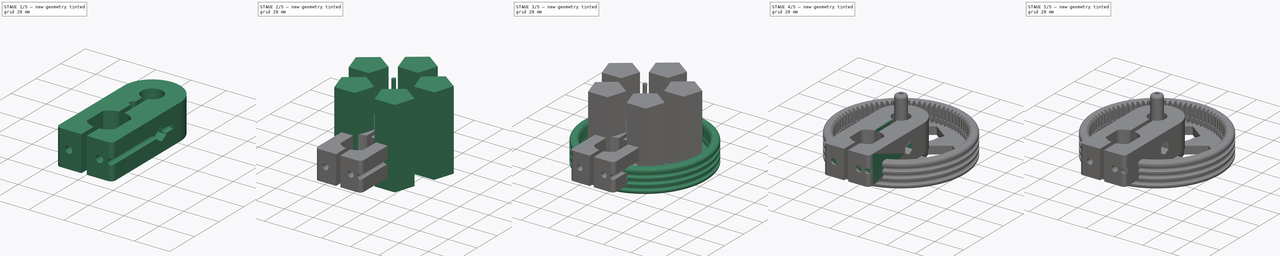
[diagram: build sequence overview — one tinted view per stage of 5, left to right]
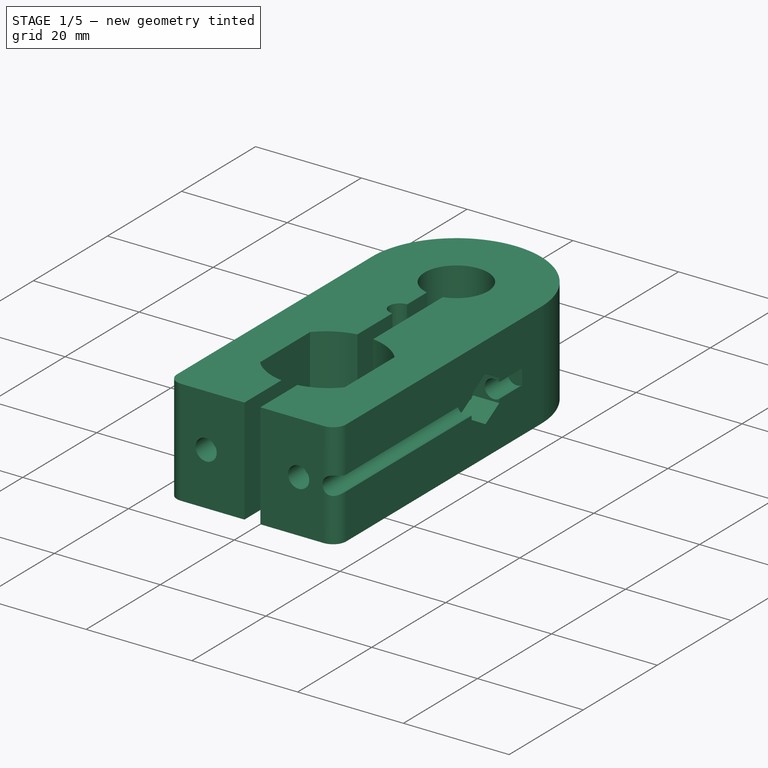
[diagram: stage 1 of 5 — iso view after this stage's code; geometry added in this stage tinted green]
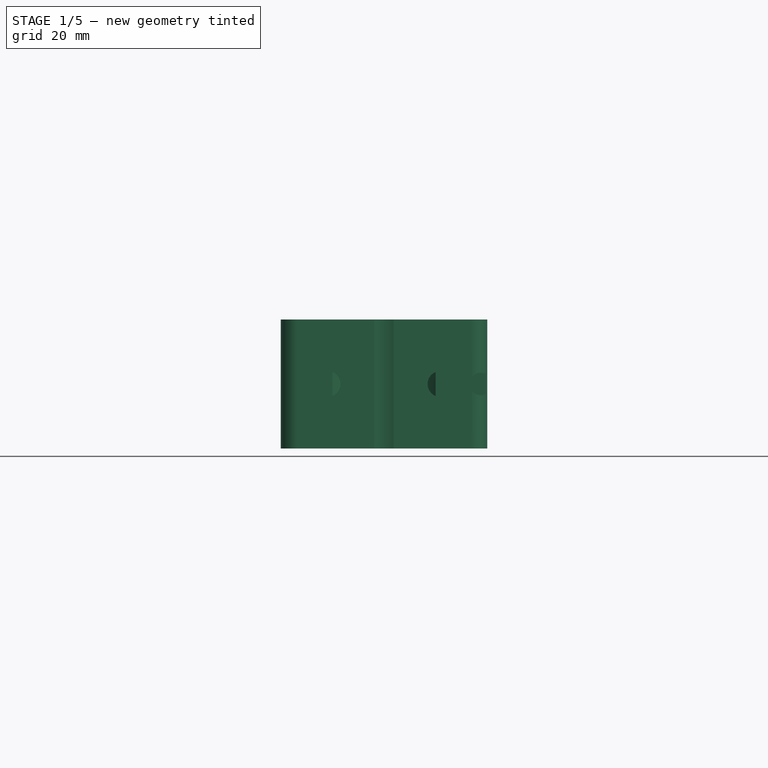
[diagram: stage 1 of 5 — front view after this stage's code; geometry added in this stage tinted green]
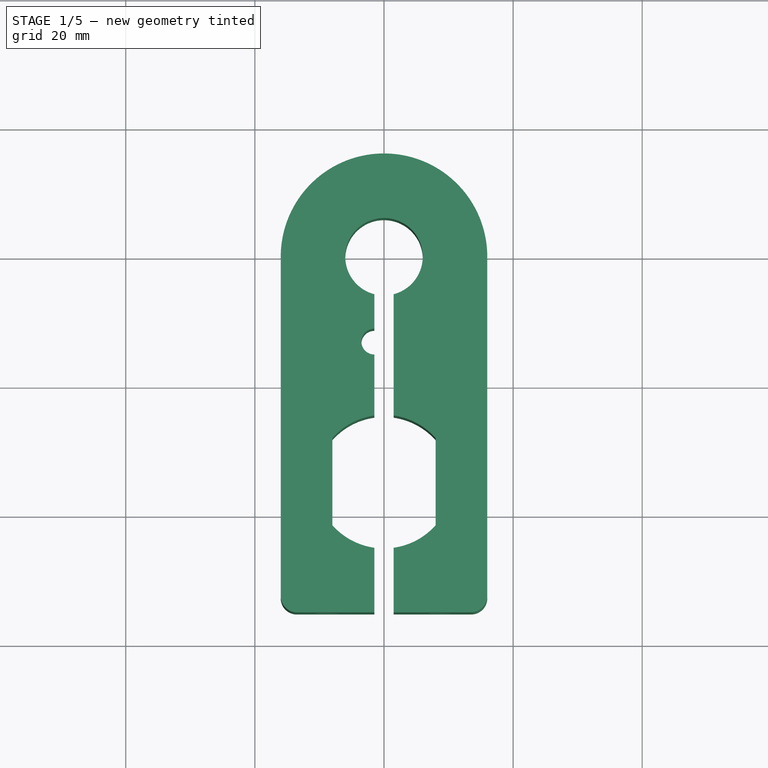
[diagram: stage 1 of 5 — top view after this stage's code; geometry added in this stage tinted green]
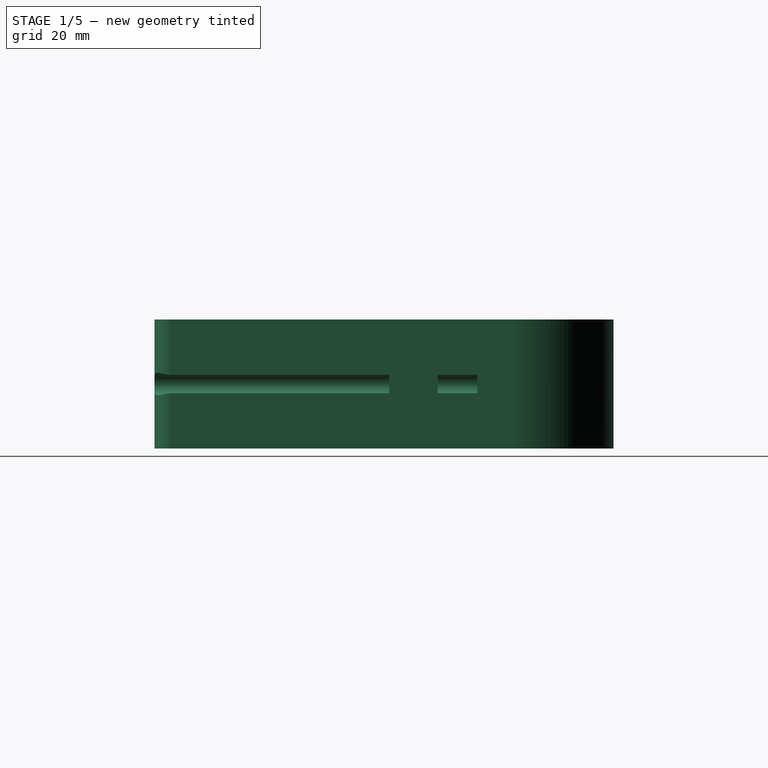
[diagram: stage 1 of 5 — right view after this stage's code; geometry added in this stage tinted green]
FCSTD DOCUMENT  (FreeCAD 0.20R29077 (Git))
Label: GruppoRuotaMotoriPiatti
License: All rights reserved
LicenseURL: http://en.wikipedia.org/wiki/All_rights_reserved
objects: Sketcher::SketchObject×17, PartDesign::Pocket×13, PartDesign::Body×6, App::Part×4, PartDesign::FeatureBase×3, Part::FeaturePython×2, Part::Cut×2, PartDesign::Pad×2, PartDesign::Revolution×1, PartDesign::FeaturePython×1, Part::Extrusion×1, PartDesign::ShapeBinder×1
note: 65 computed .brp shape members not serialized (recipe doc carries the construction recipe); baked Part::Feature solids carry a one-line shape summary decoded from their .brp

FEATURE [PartDesign::Body] Body004  label="Trasmissione 8 denti Lato Motore"
  BaseFeature = -> involutegear002
  Group = -> [BaseFeature001,Sketch010,Pocket007]
  Origin = -> Origin008
  Placement = pos=(0,-2,0) rot=(0,0,1;0.244346rad)
  Tip = -> Pocket007
FEATURE [App::Part] Part  label="Trasmissione"
  Group = -> [Body,Body001,Sketch001,Revolution,Body004]
  Origin = -> Origin
  Placement = pos=(0,-33,5) rot=(0,0,1;0.226893rad)
FEATURE [Sketcher::SketchObject] Sketch011  label="StaffaMotore015"
  FullyConstrained = false
  MapMode = 5
  Support = -> [XY_Plane010]
  sketch-geometry (37):
    g0: LineSegment StartX=-8 StartY=-28.1 StartZ=0 EndX=-8 EndY=-41.6 EndZ=0
    g1: LineSegment StartX=8 StartY=-41.6 StartZ=0 EndX=8 EndY=-28.1 EndZ=0
    g2: LineSegment StartX=-8 StartY=-28.1 StartZ=0 EndX=0 EndY=-28.1 EndZ=0
    g3: LineSegment StartX=0 StartY=-28.1 StartZ=0 EndX=8 EndY=-28.1 EndZ=0
    g4: LineSegment StartX=-8 StartY=-41.6 StartZ=0 EndX=0 EndY=-41.6 EndZ=0
    g5: LineSegment StartX=0 StartY=-41.6 StartZ=0 EndX=8 EndY=-41.6 EndZ=0
    g6: LineSegment StartX=-8 StartY=-28.1 StartZ=0 EndX=-8 EndY=-24.5 EndZ=0
    g7: LineSegment StartX=-8 StartY=-24.5 StartZ=0 EndX=8 EndY=-24.5 EndZ=0
    g8: LineSegment StartX=8 StartY=-24.5 StartZ=0 EndX=8 EndY=-28.1 EndZ=0
    g9: LineSegment StartX=-8 StartY=-41.6 StartZ=0 EndX=-8 EndY=-45.2 EndZ=0
    g10: LineSegment StartX=-8 StartY=-45.2 StartZ=0 EndX=8 EndY=-45.2 EndZ=0
    g11: LineSegment StartX=8 StartY=-45.2 StartZ=0 EndX=8 EndY=-41.6 EndZ=0
    g12: LineSegment StartX=0 StartY=-28.1 StartZ=0 EndX=0 EndY=-41.6 EndZ=0
    g13: ArcOfCircle CenterX=-8e-16 CenterY=-35.1889 CenterZ=0 NormalX=0 NormalY=0 NormalZ=1 AngleXU=0 Radius=10.6889 StartAngle=0.725088 EndAngle=2.4165
    g14: ArcOfCircle CenterX=2e-16 CenterY=-34.5111 CenterZ=0 NormalX=0 NormalY=0 NormalZ=1 AngleXU=0 Radius=10.6889 StartAngle=3.86668 EndAngle=5.5581
    g15: ArcOfCircle CenterX=0 CenterY=0 CenterZ=0 NormalX=0 NormalY=0 NormalZ=1 AngleXU=0 Radius=16 StartAngle=0 EndAngle=3.14159
    g16: LineSegment StartX=-16 StartY=2e-15 StartZ=0 EndX=-16 EndY=-52.5942 EndZ=0
    g17: LineSegment StartX=16 StartY=-52.5942 StartZ=0 EndX=16 EndY=0 EndZ=0
    g18: ArcOfCircle CenterX=-13.5 CenterY=-52.5942 CenterZ=0 NormalX=0 NormalY=0 NormalZ=1 AngleXU=0 Radius=2.5 StartAngle=3.14159 EndAngle=4.71239
    g19: ArcOfCircle CenterX=13.5 CenterY=-52.5942 CenterZ=0 NormalX=0 NormalY=0 NormalZ=1 AngleXU=0 Radius=2.5 StartAngle=4.71239 EndAngle=6.28319
    g20: LineSegment StartX=-1.5 StartY=-55.0942 StartZ=0 EndX=-1.5 EndY=-45.0942 EndZ=0
    g21: LineSegment StartX=1.5 StartY=-55.0942 StartZ=0 EndX=1.5 EndY=-45.0942 EndZ=0
    g22: LineSegment StartX=-13.5 StartY=-55.0942 StartZ=0 EndX=-1.5 EndY=-55.0942 EndZ=0
    g23: LineSegment StartX=-1.5 StartY=-55.0942 StartZ=0 EndX=1.5 EndY=-55.0942 EndZ=0
    g24: LineSegment StartX=1.5 StartY=-55.0942 StartZ=0 EndX=13.5 EndY=-55.0942 EndZ=0
    g25: ArcOfCircle CenterX=2e-16 CenterY=-34.5111 CenterZ=0 NormalX=0 NormalY=0 NormalZ=1 AngleXU=0 Radius=10.6889 StartAngle=3.86668 EndAngle=4.57159
    g26: ArcOfCircle CenterX=2e-16 CenterY=-34.5111 CenterZ=0 NormalX=0 NormalY=0 NormalZ=1 AngleXU=0 Radius=10.6889 StartAngle=4.85319 EndAngle=5.5581
    g27: ArcOfCircle CenterX=0 CenterY=0 CenterZ=0 NormalX=0 NormalY=0 NormalZ=1 AngleXU=0 Radius=6 StartAngle=4.96507 EndAngle=10.7429
    g28: LineSegment StartX=1.5 StartY=-5.80948 StartZ=0 EndX=1.5 EndY=-24.6058 EndZ=0
    g29: LineSegment StartX=-1.5 StartY=-24.6058 StartZ=0 EndX=-1.5 EndY=-45.0942 EndZ=0
    g30: LineSegment StartX=1.5 StartY=-45.0942 StartZ=0 EndX=1.5 EndY=-24.6058 EndZ=0
    g31: ArcOfCircle CenterX=-8e-16 CenterY=-35.1889 CenterZ=0 NormalX=0 NormalY=0 NormalZ=1 AngleXU=0 Radius=10.6889 StartAngle=1.71159 EndAngle=2.4165
    g32: ArcOfCircle CenterX=-8e-16 CenterY=-35.1889 CenterZ=0 NormalX=0 NormalY=0 NormalZ=1 AngleXU=0 Radius=10.6889 StartAngle=0.725088 EndAngle=1.43
    g33: ArcOfCircle CenterX=-1.5 CenterY=-13.1509 CenterZ=0 NormalX=0 NormalY=0 NormalZ=1 AngleXU=0 Radius=2 StartAngle=1.5708 EndAngle=4.71239
    g34: LineSegment StartX=-1.5 StartY=-5.80948 StartZ=0 EndX=-1.5 EndY=-11.1509 EndZ=0
    g35: LineSegment StartX=-1.5 StartY=-11.1509 StartZ=0 EndX=-1.5 EndY=-15.1509 EndZ=0
    g36: LineSegment StartX=-1.5 StartY=-15.1509 StartZ=0 EndX=-1.5 EndY=-24.6058 EndZ=0
  constraints (99):
    c: Vertical(g0)
    c: DistanceY(g0,g0) = 13.5
    c: Coincident(g2,g0)
    c: Coincident(g3,g1)
    c: Coincident(g4,g0)
    c: Coincident(g5,g1)
    c: Coincident(g2,g3)
    c: Horizontal(g2)
    c: Horizontal(g3)
    c: Coincident(g4,g5)
    c: Horizontal(g4)
    c: Horizontal(g5)
    c: Coincident(g0,g6)
    c: Coincident(g6,g7)
    c: Horizontal(g7)
    c: Coincident(g7,g8)
    c: Coincident(g8,g1)
    c: Vertical(g8)
    c: Coincident(g0,g9)
    c: Vertical(g9)
    c: Coincident(g9,g10)
    c: Horizontal(g10)
    c: Coincident(g10,g11)
    c: Coincident(g11,g1)
    c: Vertical(g6)
    c: DistanceY(g0,g6) = 3.6
    c: DistanceX(g6,g7) = 16
    c: Vertical(g1)
    c: Equal(g9,g6)
    c: Vertical(g11)
    c: Coincident(g2,g12)
    c: Coincident(g12,g4)
    c: Vertical(g12)
    c: Equal(g2,g3)
    c: Coincident(g13,g0)
    c: Coincident(g13,g1)
    c: Tangent(g13,g7)
    c: Coincident(g14,g0)
    c: Coincident(g14,g1)
    c: Tangent(g14,g10)
    c: PointOnObject(g2,g-2)
    c: Coincident(g15,g-1)
    c: PointOnObject(g15,g-1)
    c: PointOnObject(g15,g-1)
    c: Radius(g15) = 16
    c: Tangent(g15,g16) = -1.5708
    c: Coincident(g17,g15)
    c: Vertical(g17)
    c: Tangent(g16,g18) = -1.5708
    c: Tangent(g22,g18) = -1.5708
    c: Tangent(g17,g19) = -1.5708
    c: Tangent(g24,g19) = -1.5708
    c: Equal(g19,g18)
    c: Radius(g19) = 2.5
    c: Vertical(g20)
    c: Vertical(g21)
    c: DistanceX(g20,g21) = 3
    c: Coincident(g22,g23)
    c: Horizontal(g22)
    c: Coincident(g23,g24)
    c: Horizontal(g23)
    c: Horizontal(g24)
    c: Coincident(g23,g21)
    c: Coincident(g22,g20)
    c: Equal(g22,g24)
    c: Coincident(g25,g14)
    c: Coincident(g25,g0)
    c: Coincident(g25,g20)
    c: Coincident(g26,g25)
    c: Coincident(g26,g21)
    c: Coincident(g26,g1)
    c: DistanceY(g18,g20) = 10
    c: DistanceY(g7,g-1) = 24.5
    c: Coincident(g27,g15)
    c: Coincident(g34,g27)
    c: Coincident(g28,g27)
    c: Coincident(g29,g36)
    c: Coincident(g29,g20)
    c: Coincident(g30,g21)
    c: Coincident(g30,g28)
    c: Vertical(g30)
    c: Vertical(g28)
    c: Vertical(g29)
    c: Coincident(g31,g13)
    c: Coincident(g31,g0)
    c: Coincident(g31,g36)
    c: Coincident(g32,g31)
    c: Coincident(g32,g1)
    c: Coincident(g32,g28)
    c: Radius(g27) = 6
    c: Coincident(g34,g35)
    c: Vertical(g34)
    c: Coincident(g35,g36)
    c: Vertical(g35)
    c: Vertical(g36)
    c: PointOnObject(g33,g35)
    c: Coincident(g35,g33)
    c: Coincident(g34,g33)
    c: Radius(g33) = 2
FEATURE [PartDesign::Pad] Pad001  label="StaffaMotore009"
  Direction = (0,0,1)
  Length = 20
  Length2 = 10
  Profile = -> Sketch011
  ReferenceAxis = -> Sketch011 [N_Axis]
  Type = 0
FEATURE [Sketcher::SketchObject] Sketch012  label="ForoViteSerraggio001"
  FullyConstrained = true
  MapMode = 5
  Placement = pos=(0,-55.0942,0) rot=(1,0,0;1.5708rad)
  Support = -> [Pad001]
  sketch-geometry (1):
    g0: Circle CenterX=15 CenterY=10 CenterZ=0 NormalX=0 NormalY=0 NormalZ=1 AngleXU=0 Radius=1.75
  constraints (3):
    c: DistanceY(g-1,g0) = 10
    c: DistanceX(g-1,g0) = 15
    c: Radius(g0) = 1.75
FEATURE [PartDesign::Pocket] Pocket008  label="StaffaMotore010"
  BaseFeature = -> Pad001
  Direction = (0,1,-2e-16)
  Length = 50
  Length2 = 5
  Profile = -> Sketch012
  ReferenceAxis = -> Sketch012 [N_Axis]
  Type = 0
FEATURE [Sketcher::SketchObject] Sketch013  label="SedeDadoSerraggio001"
  AttachmentOffset = pos=(0,0,0) rot=(0,1,0;3.14159rad)
  FullyConstrained = true
  MapMode = 5
  Placement = pos=(16,0,0) rot=(-0.57735,0.57735,0.57735;4.18879rad)
  Support = -> [Pocket008]
  sketch-geometry (7):
    g0: LineSegment StartX=18.75 StartY=7.83494 StartZ=0 EndX=18.75 EndY=12.1651 EndZ=0
    g1: LineSegment StartX=18.75 StartY=12.1651 StartZ=0 EndX=15 EndY=14.3301 EndZ=0
    g2: LineSegment StartX=15 StartY=14.3301 StartZ=0 EndX=11.25 EndY=12.1651 EndZ=0
    g3: LineSegment StartX=11.25 StartY=12.1651 StartZ=0 EndX=11.25 EndY=7.83494 EndZ=0
    g4: LineSegment StartX=11.25 StartY=7.83494 StartZ=0 EndX=15 EndY=5.66987 EndZ=0
    g5: LineSegment StartX=15 StartY=5.66987 StartZ=0 EndX=18.75 EndY=7.83494 EndZ=0
    g6: Circle CenterX=15 CenterY=10 CenterZ=0 NormalX=0 NormalY=0 NormalZ=1 AngleXU=0 Radius=4.33013
  constraints (17):
    c: Coincident(g0,g1)
    c: Coincident(g1,g2)
    c: Coincident(g2,g3)
    c: Coincident(g3,g4)
    c: Coincident(g4,g5)
    c: Coincident(g5,g0)
    c: Equal(g0, g1-g5) x5
    c: PointOnObject(g0,g6)
    c: PointOnObject(g1,g6)
    c: PointOnObject(g2,g6)
    c: PointOnObject(g3,g6)
    c: PointOnObject(g4,g6)
    c: PointOnObject(g5,g6)
    c: Vertical(g0)
    c: DistanceX(g2,g0) = 7.5
    c: DistanceY(g-1,g6) = 10
    c: DistanceX(g-1,g6) = 15
FEATURE [PartDesign::Pocket] Pocket009  label="StaffaMotore011"
  BaseFeature = -> Pocket008
  Direction = (1,-1e-16,0)
  Length = 5
  Length2 = 5
  Profile = -> Sketch013
  ReferenceAxis = -> Sketch013 [N_Axis]
  Reversed = true
  Type = 0
FEATURE [Sketcher::SketchObject] Sketch014  label="IncastroPerStaffaFissaggio001"
  FullyConstrained = false
  MapMode = 5
  Placement = pos=(0,0,0) rot=(1,0,0;3.14159rad)
  sketch-geometry (38):
    g0: LineSegment StartX=-7 StartY=54.7266 StartZ=0 EndX=-7 EndY=50.7266 EndZ=0
    g1: LineSegment StartX=-7 StartY=50.7266 StartZ=0 EndX=-6.15 EndY=50.7266 EndZ=0
    g2: LineSegment StartX=-6.15 StartY=50.7266 StartZ=0 EndX=-6.15 EndY=46.7266 EndZ=0
    g3: LineSegment StartX=-6.15 StartY=46.7266 StartZ=0 EndX=-11.85 EndY=46.7266 EndZ=0
    g4: LineSegment StartX=-11.85 StartY=46.7266 StartZ=0 EndX=-11.85 EndY=50.7266 EndZ=0
    g5: LineSegment StartX=-11.85 StartY=50.7266 StartZ=0 EndX=-11 EndY=50.7266 EndZ=0
    g6: LineSegment StartX=-11 StartY=50.7266 StartZ=0 EndX=-11 EndY=54.7266 EndZ=0
    g7: LineSegment StartX=-11 StartY=50.7266 StartZ=0 EndX=-7 EndY=50.7266 EndZ=0
    g8: LineSegment StartX=-11 StartY=54.7266 StartZ=0 EndX=-9 EndY=54.7266 EndZ=0
    g9: LineSegment StartX=-9 StartY=54.7266 StartZ=0 EndX=-7 EndY=54.7266 EndZ=0
    g10: LineSegment StartX=7 StartY=54.7266 StartZ=0 EndX=9 EndY=54.7266 EndZ=0
    g11: LineSegment StartX=9 StartY=54.7266 StartZ=0 EndX=11 EndY=54.7266 EndZ=0
    g12: LineSegment StartX=11 StartY=54.7266 StartZ=0 EndX=11 EndY=50.7266 EndZ=0
    g13: LineSegment StartX=11 StartY=50.7266 StartZ=0 EndX=11.85 EndY=50.7266 EndZ=0
    g14: LineSegment StartX=11.85 StartY=50.7266 StartZ=0 EndX=11.85 EndY=46.7266 EndZ=0
    g15: LineSegment StartX=11.85 StartY=46.7266 StartZ=0 EndX=6.15 EndY=46.7266 EndZ=0
    g16: LineSegment StartX=6.15 StartY=46.7266 StartZ=0 EndX=6.15 EndY=50.7266 EndZ=0
    g17: LineSegment StartX=6.15 StartY=50.7266 StartZ=0 EndX=7 EndY=50.7266 EndZ=0
    g18: LineSegment StartX=7 StartY=50.7266 StartZ=0 EndX=7 EndY=54.7266 EndZ=0
    g19: LineSegment StartX=7 StartY=50.7266 StartZ=0 EndX=11 EndY=50.7266 EndZ=0
    g20: LineSegment StartX=-6.15 StartY=46.7266 StartZ=0 EndX=6.15 EndY=46.7266 EndZ=0
    g21: LineSegment StartX=-6.15 StartY=50.7266 StartZ=0 EndX=6.15 EndY=50.7266 EndZ=0
    g22: LineSegment StartX=-7 StartY=54.7266 StartZ=0 EndX=7 EndY=54.7266 EndZ=0
    g23: LineSegment StartX=-11 StartY=46.7266 StartZ=0 EndX=-11 EndY=42.2803 EndZ=0
    g24: LineSegment StartX=-11 StartY=42.2803 StartZ=0 EndX=-9 EndY=42.2803 EndZ=0
    g25: LineSegment StartX=-9 StartY=42.2803 StartZ=0 EndX=-7 EndY=42.2803 EndZ=0
    g26: LineSegment StartX=-7 StartY=42.2803 StartZ=0 EndX=-7 EndY=46.7266 EndZ=0
    g27: LineSegment StartX=7 StartY=46.7266 StartZ=0 EndX=7 EndY=42.2803 EndZ=0
    g28: LineSegment StartX=7 StartY=42.2803 StartZ=0 EndX=9 EndY=42.2803 EndZ=0
    g29: LineSegment StartX=9 StartY=42.2803 StartZ=0 EndX=11 EndY=42.2803 EndZ=0
    g30: LineSegment StartX=11 StartY=42.2803 StartZ=0 EndX=11 EndY=46.7266 EndZ=0
    g31: LineSegment StartX=-11 StartY=50.7266 StartZ=0 EndX=-11 EndY=46.7266 EndZ=0
    g32: LineSegment StartX=-7 StartY=50.7266 StartZ=0 EndX=-7 EndY=46.7266 EndZ=0
    g33: LineSegment StartX=11 StartY=50.7266 StartZ=0 EndX=11 EndY=46.7266 EndZ=0
    g34: LineSegment StartX=7 StartY=50.7266 StartZ=0 EndX=7 EndY=46.7266 EndZ=0
    g35: LineSegment StartX=-9 StartY=54.7266 StartZ=0 EndX=-9 EndY=42.2803 EndZ=0
    g36: LineSegment StartX=9 StartY=54.7266 StartZ=0 EndX=9 EndY=42.2803 EndZ=0
    g37: LineSegment StartX=-7 StartY=42.2803 StartZ=0 EndX=7 EndY=42.2803 EndZ=0
  constraints (101):
    c: Coincident(g9,g0)
    c: Coincident(g0,g1)
    c: Horizontal(g1)
    c: Coincident(g1,g2)
    c: Vertical(g2)
    c: Coincident(g2,g3)
    c: Horizontal(g3)
    c: Coincident(g3,g4)
    c: Vertical(g4)
    c: Coincident(g4,g5)
    c: Horizontal(g5)
    c: Coincident(g5,g6)
    c: Coincident(g6,g8)
    c: Vertical(g6)
    c: Vertical(g0)
    c: DistanceY(g3,g4) = 4
    c: DistanceX(g3,g2) = 5.7
    c: DistanceX(g8,g9) = 4
    c: Equal(g5,g1)
    c: DistanceY(g5,g8) = 4
    c: Coincident(g7,g5)
    c: Coincident(g7,g0)
    c: Horizontal(g7)
    c: Coincident(g8,g9)
    c: Horizontal(g8)
    c: Horizontal(g9)
    c: Equal(g8,g9)
    c: Horizontal(g10)
    c: Coincident(g10,g11)
    c: Horizontal(g11)
    c: Coincident(g11,g12)
    c: Coincident(g12,g13)
    c: Horizontal(g13)
    c: Coincident(g13,g14)
    c: Coincident(g14,g15)
    c: Horizontal(g15)
    c: Coincident(g15,g16)
    c: Vertical(g16)
    c: Coincident(g16,g17)
    c: Horizontal(g17)
    c: Coincident(g17,g18)
    c: Coincident(g18,g10)
    c: Coincident(g19,g17)
    c: Coincident(g19,g12)
    c: Horizontal(g19)
    c: Coincident(g20,g2)
    c: Coincident(g20,g15)
    c: Coincident(g21,g1)
    c: Coincident(g21,g16)
    c: Horizontal(g20)
    c: Coincident(g22,g0)
    c: Coincident(g22,g10)
    c: Horizontal(g22)
    c: Equal(g11,g10)
    c: DistanceX(g10,g11) = 4
    c: Equal(g13,g17)
    c: Vertical(g14)
    c: DistanceX(g15,g14) = 5.7
    c: Vertical(g12)
    c: Vertical(g18)
    c: Symmetric(g1,g16,g-2)
    c: DistanceX(g8,g10) = 18
    c: PointOnObject(g23,g3)
    c: Vertical(g23)
    c: Coincident(g23,g24)
    c: Coincident(g24,g25)
    c: Horizontal(g25)
    c: Coincident(g25,g26)
    c: PointOnObject(g26,g3)
    c: Vertical(g26)
    c: PointOnObject(g27,g15)
    c: Vertical(g27)
    c: Coincident(g27,g28)
    c: Horizontal(g28)
    c: Coincident(g28,g29)
    c: Horizontal(g29)
    c: Coincident(g29,g30)
    c: PointOnObject(g30,g15)
    c: Vertical(g30)
    c: Coincident(g31,g5)
    c: Coincident(g31,g23)
    c: Coincident(g32,g1)
    c: Coincident(g32,g26)
    c: Coincident(g33,g13)
    c: Coincident(g33,g30)
    c: Coincident(g34,g17)
    c: Coincident(g34,g27)
    c: Vertical(g31)
    c: Vertical(g32)
    c: Vertical(g34)
    c: Vertical(g33)
    c: Coincident(g35,g8)
    c: Coincident(g35,g24)
    c: Vertical(g35)
    c: Coincident(g36,g10)
    c: Coincident(g36,g28)
    c: Vertical(g36)
    c: Coincident(g37,g25)
    c: Coincident(g37,g27)
    c: Horizontal(g37)
    c: Horizontal(g24)
FEATURE [PartDesign::Pocket] Pocket010  label="StaffaMotore012"
  BaseFeature = -> Pocket009
  Direction = (0,0,1)
  Length = 15
  Length2 = 5
  Profile = -> Sketch014
  ReferenceAxis = -> Sketch014 [N_Axis]
  Type = 0
FEATURE [Sketcher::SketchObject] Sketch015  label="ForiVitiFissaggio001"
  FullyConstrained = true
  MapMode = 5
  Placement = pos=(0,-55.0942,0) rot=(1,0,0;1.5708rad)
  Support = -> [Pocket010]
  sketch-geometry (4):
    g0: Circle CenterX=-8.75 CenterY=10 CenterZ=0 NormalX=0 NormalY=0 NormalZ=1 AngleXU=0 Radius=2
    g1: Circle CenterX=8.75 CenterY=10 CenterZ=0 NormalX=0 NormalY=0 NormalZ=1 AngleXU=0 Radius=2
    g2: LineSegment StartX=-8.75 StartY=10 StartZ=0 EndX=0 EndY=10 EndZ=0
    g3: LineSegment StartX=0 StartY=10 StartZ=0 EndX=8.75 EndY=10 EndZ=0
  constraints (11):
    c: Coincident(g0,g2)
    c: Coincident(g1,g3)
    c: Equal(g1,g0)
    c: Radius(g0) = 2
    c: Coincident(g2,g3)
    c: Horizontal(g2)
    c: Horizontal(g3)
    c: PointOnObject(g2,g-2)
    c: Equal(g2,g3)
    c: DistanceX(g0,g1) = 17.5
    c: DistanceY(g-1,g1) = 10
FEATURE [PartDesign::Pocket] Pocket011  label="StaffaMotore016"
  BaseFeature = -> Pocket010
  Direction = (0,1,-2e-16)
  Length = 15
  Length2 = 5
  Profile = -> Sketch015
  ReferenceAxis = -> Sketch015 [N_Axis]
  Type = 0
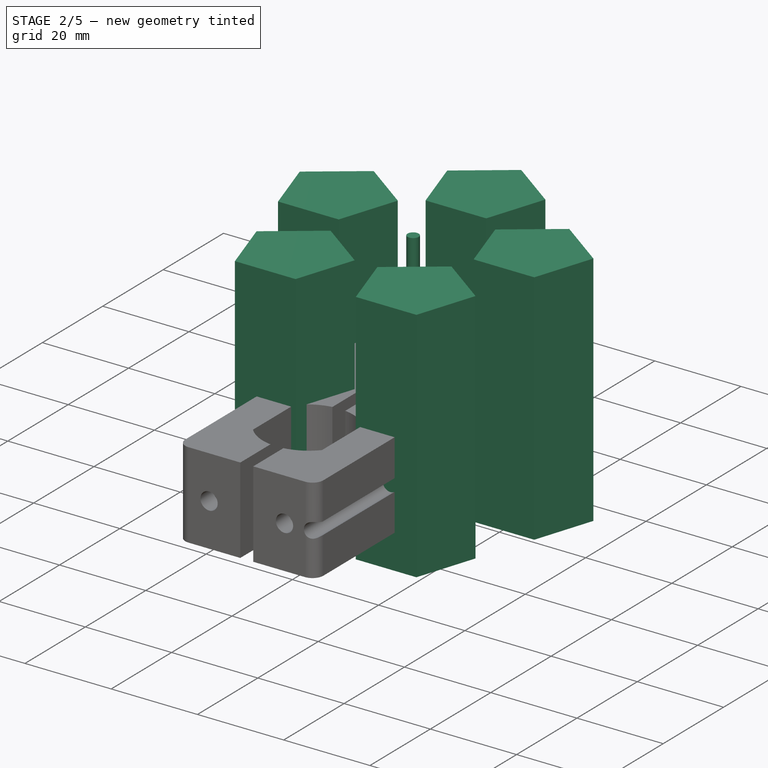
[diagram: stage 2 of 5 — iso view after this stage's code; geometry added in this stage tinted green]
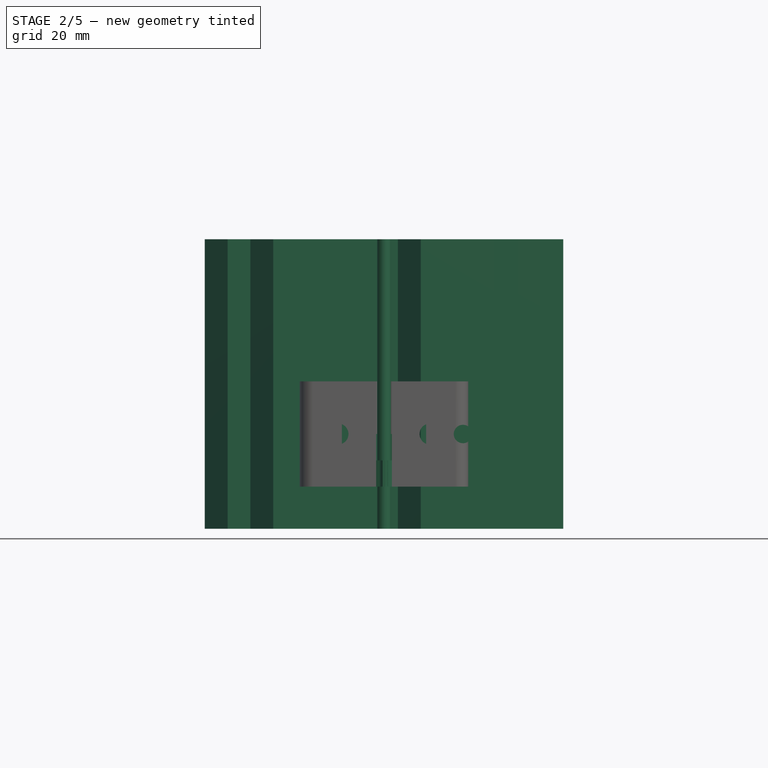
[diagram: stage 2 of 5 — front view after this stage's code; geometry added in this stage tinted green]
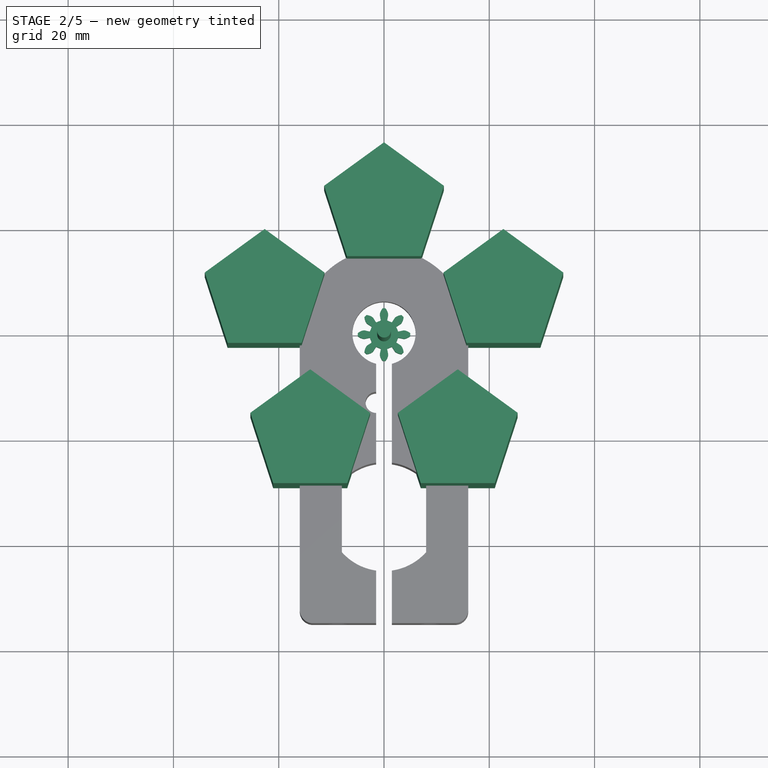
[diagram: stage 2 of 5 — top view after this stage's code; geometry added in this stage tinted green]
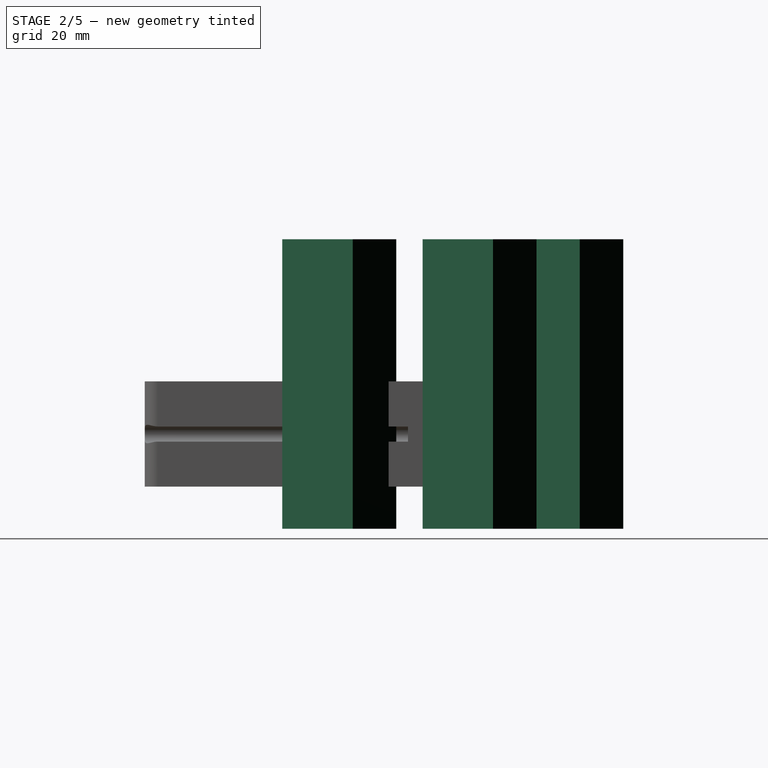
[diagram: stage 2 of 5 — right view after this stage's code; geometry added in this stage tinted green]
FEATURE [PartDesign::Body] Body003  label="StaffaMotore"
  Group = -> [Sketch003,Pad,Sketch004,Sketch005,Pocket002,Sketch006,Pocket003,Pocket004,Sketch007,Pocket005,Sketch008,Pocket006]
  Origin = -> Origin007
  Tip = -> Pocket006
FEATURE [App::Part] Part002  label="Staffa Motore"
  Group = -> [Body003]
  Origin = -> Origin005
  Placement = pos=(0,0,17) rot=(0,0,1;0rad)
FEATURE [Sketcher::SketchObject] Sketch009  label="ForoAsseAcciaioRuota"
  AttachmentOffset = pos=(0,0,-5) rot=(0,0,1;0rad)
  FullyConstrained = false
  MapMode = 5
  Placement = pos=(0,0,-5) rot=(0,0,1;0rad)
  Support = -> [XY_Plane004]
  sketch-geometry (47):
    g0: Circle CenterX=0 CenterY=0 CenterZ=0 NormalX=0 NormalY=0 NormalZ=1 AngleXU=0 Radius=1.3
    g1: LineSegment StartX=14.0139 StartY=-19.2885 StartZ=0 EndX=22.675 EndY=7.36755 EndZ=0
    g2: LineSegment StartX=22.675 StartY=7.36755 StartZ=0 EndX=0 EndY=23.8419 EndZ=0
    g3: LineSegment StartX=0 StartY=23.8419 StartZ=0 EndX=-22.675 EndY=7.36755 EndZ=0
    g4: LineSegment StartX=-22.675 StartY=7.36755 StartZ=0 EndX=-14.0139 EndY=-19.2885 EndZ=0
    g5: LineSegment StartX=-14.0139 StartY=-19.2885 StartZ=0 EndX=14.0139 EndY=-19.2885 EndZ=0
    g6: Circle CenterX=0 CenterY=0 CenterZ=0 NormalX=0 NormalY=0 NormalZ=1 AngleXU=0 Radius=23.8419
    g7: LineSegment StartX=7.03079 StartY=14.1648 StartZ=0 EndX=11.3761 EndY=27.5382 EndZ=0
    g8: LineSegment StartX=11.3761 StartY=27.5382 StartZ=0 EndX=-1.8e-15 EndY=35.8034 EndZ=0
    g9: LineSegment StartX=-1.8e-15 StartY=35.8034 StartZ=0 EndX=-11.3761 EndY=27.5382 EndZ=0
    g10: LineSegment StartX=-11.3761 StartY=27.5382 StartZ=0 EndX=-7.03079 EndY=14.1648 EndZ=0
    g11: LineSegment StartX=-7.03079 StartY=14.1648 StartZ=0 EndX=7.03079 EndY=14.1648 EndZ=0
    g12: Circle CenterX=0 CenterY=23.8419 CenterZ=0 NormalX=0 NormalY=0 NormalZ=1 AngleXU=0 Radius=11.9615
    g13: LineSegment StartX=-11.2989 StartY=11.0639 StartZ=0 EndX=-22.675 EndY=19.329 EndZ=0
    g14: LineSegment StartX=-22.675 StartY=19.329 StartZ=0 EndX=-34.051 EndY=11.0639 EndZ=0
    g15: LineSegment StartX=-34.051 StartY=11.0639 StartZ=0 EndX=-29.7058 EndY=-2.3095 EndZ=0
    g16: LineSegment StartX=-29.7058 StartY=-2.3095 StartZ=0 EndX=-15.6442 EndY=-2.3095 EndZ=0
    g17: LineSegment StartX=-15.6442 StartY=-2.3095 StartZ=0 EndX=-11.2989 EndY=11.0639 EndZ=0
    g18: Circle CenterX=-22.675 CenterY=7.36755 CenterZ=0 NormalX=0 NormalY=0 NormalZ=1 AngleXU=0 Radius=11.9615
    g19: LineSegment StartX=-6.98312 StartY=-28.9655 StartZ=0 EndX=-2.63786 EndY=-15.5922 EndZ=0
    g20: LineSegment StartX=-2.63786 StartY=-15.5922 StartZ=0 EndX=-14.0139 EndY=-7.327 EndZ=0
    g21: LineSegment StartX=-14.0139 StartY=-7.327 StartZ=0 EndX=-25.39 EndY=-15.5922 EndZ=0
    g22: LineSegment StartX=-25.39 StartY=-15.5922 StartZ=0 EndX=-21.0447 EndY=-28.9655 EndZ=0
    g23: LineSegment StartX=-21.0447 StartY=-28.9655 StartZ=0 EndX=-6.98312 EndY=-28.9655 EndZ=0
    g24: Circle CenterX=-14.0139 CenterY=-19.2885 CenterZ=0 NormalX=0 NormalY=0 NormalZ=1 AngleXU=0 Radius=11.9615
    g25: LineSegment StartX=21.0447 StartY=-28.9655 StartZ=0 EndX=25.39 EndY=-15.5922 EndZ=0
    g26: LineSegment StartX=25.39 StartY=-15.5922 StartZ=0 EndX=14.0139 EndY=-7.327 EndZ=0
    g27: LineSegment StartX=14.0139 StartY=-7.327 StartZ=0 EndX=2.63786 EndY=-15.5922 EndZ=0
    g28: LineSegment StartX=2.63786 StartY=-15.5922 StartZ=0 EndX=6.98312 EndY=-28.9655 EndZ=0
    g29: LineSegment StartX=6.98312 StartY=-28.9655 StartZ=0 EndX=21.0447 EndY=-28.9655 EndZ=0
    g30: Circle CenterX=14.0139 CenterY=-19.2885 CenterZ=0 NormalX=0 NormalY=0 NormalZ=1 AngleXU=0 Radius=11.9615
    g31: LineSegment StartX=29.7058 StartY=-2.3095 StartZ=0 EndX=34.051 EndY=11.0639 EndZ=0
    g32: LineSegment StartX=34.051 StartY=11.0639 StartZ=0 EndX=22.675 EndY=19.329 EndZ=0
    g33: LineSegment StartX=22.675 StartY=19.329 StartZ=0 EndX=11.2989 EndY=11.0639 EndZ=0
    g34: LineSegment StartX=11.2989 StartY=11.0639 StartZ=0 EndX=15.6442 EndY=-2.3095 EndZ=0
    g35: LineSegment StartX=15.6442 StartY=-2.3095 StartZ=0 EndX=29.7058 EndY=-2.3095 EndZ=0
    g36: Circle CenterX=22.675 CenterY=7.36755 CenterZ=0 NormalX=0 NormalY=0 NormalZ=1 AngleXU=0 Radius=11.9615
    g37: LineSegment StartX=7.03079 StartY=14.1648 StartZ=0 EndX=13.3193 EndY=14.1648 EndZ=0
    g38: LineSegment StartX=-7.03079 StartY=14.1648 StartZ=0 EndX=-13.3193 EndY=14.1648 EndZ=0
    g39: LineSegment StartX=-11.2989 StartY=11.0639 StartZ=0 EndX=-9.35567 EndY=17.0446 EndZ=0
    g40: LineSegment StartX=-15.6442 StartY=-2.3095 StartZ=0 EndX=-17.5875 EndY=-8.29025 EndZ=0
    g41: LineSegment StartX=-19.1014 StartY=-3.6307 StartZ=0 EndX=-14.0139 EndY=-7.327 EndZ=0
    g42: LineSegment StartX=-2.63786 StartY=-15.5922 StartZ=0 EndX=2.44967 EndY=-19.2885 EndZ=0
    g43: LineSegment StartX=2.63786 StartY=-15.5922 StartZ=0 EndX=-2.44967 EndY=-19.2885 EndZ=0
    g44: LineSegment StartX=14.0139 StartY=-7.327 StartZ=0 EndX=19.1014 EndY=-3.6307 EndZ=0
    g45: LineSegment StartX=15.6442 StartY=-2.3095 StartZ=0 EndX=17.5875 EndY=-8.29025 EndZ=0
    g46: LineSegment StartX=11.2989 StartY=11.0639 StartZ=0 EndX=9.35567 EndY=17.0446 EndZ=0
  constraints (111):
    c: Coincident(g0,g-1)
    c: Radius(g0) = 1.3
    c: Coincident(g1,g2)
    c: Coincident(g2,g3)
    c: Coincident(g3,g4)
    c: Coincident(g4,g5)
    c: Coincident(g5,g1)
    c: Equal(g1, g2-g5) x4
    c: PointOnObject(g1,g6)
    c: PointOnObject(g2,g6)
    c: PointOnObject(g3,g6)
    c: PointOnObject(g4,g6)
    c: PointOnObject(g5,g6)
    c: Coincident(g6,g0)
    c: Horizontal(g5)
    c: Coincident(g7,g8)
    c: Coincident(g8,g9)
    c: Coincident(g9,g10)
    c: Coincident(g10,g11)
    c: Coincident(g11,g7)
    c: Equal(g7, g8-g11) x4
    c: PointOnObject(g7,g12)
    c: PointOnObject(g8,g12)
    c: PointOnObject(g9,g12)
    c: PointOnObject(g10,g12)
    c: PointOnObject(g11,g12)
    c: Coincident(g12,g2)
    c: Coincident(g13,g14)
    c: Coincident(g14,g15)
    c: Coincident(g15,g16)
    c: Coincident(g16,g17)
    c: Coincident(g17,g13)
    c: Equal(g13, g14-g17) x4
    c: PointOnObject(g13,g18)
    c: PointOnObject(g14,g18)
    c: PointOnObject(g15,g18)
    c: PointOnObject(g16,g18)
    c: PointOnObject(g17,g18)
    c: Coincident(g18,g3)
    c: Coincident(g19,g20)
    c: Coincident(g20,g21)
    c: Coincident(g21,g22)
    c: Coincident(g22,g23)
    c: Coincident(g23,g19)
    c: Equal(g19, g20-g23) x4
    c: PointOnObject(g19,g24)
    c: PointOnObject(g20,g24)
    c: PointOnObject(g21,g24)
    c: PointOnObject(g22,g24)
    c: PointOnObject(g23,g24)
    c: Coincident(g24,g4)
    c: Coincident(g25,g26)
    c: Coincident(g26,g27)
    c: Coincident(g27,g28)
    c: Coincident(g28,g29)
    c: Coincident(g29,g25)
    c: Equal(g25, g26-g29) x4
    c: PointOnObject(g25,g30)
    c: PointOnObject(g26,g30)
    c: PointOnObject(g27,g30)
    c: PointOnObject(g28,g30)
    c: PointOnObject(g29,g30)
    c: Coincident(g30,g1)
    c: Coincident(g31,g32)
    c: Coincident(g32,g33)
    c: Coincident(g33,g34)
    c: Coincident(g34,g35)
    c: Coincident(g35,g31)
    c: Equal(g31, g32-g35) x4
    c: PointOnObject(g31,g36)
    c: PointOnObject(g32,g36)
    c: PointOnObject(g33,g36)
    c: PointOnObject(g34,g36)
    c: PointOnObject(g35,g36)
    c: Coincident(g36,g1)
    c: Coincident(g37,g7)
    c: PointOnObject(g37,g2)
    c: Horizontal(g37)
    c: Coincident(g38,g10)
    c: PointOnObject(g38,g3)
    c: Horizontal(g38)
    c: Equal(g38,g37)
    c: Coincident(g39,g13)
    c: PointOnObject(g39,g3)
    c: Coincident(g40,g16)
    c: PointOnObject(g40,g4)
    c: Equal(g39,g40)
    c: Tangent(g40,g17)
    c: Tangent(g39,g17)
    c: PointOnObject(g41,g4)
    c: Coincident(g42,g19)
    c: PointOnObject(g42,g5)
    c: Tangent(g42,g20)
    c: Tangent(g41,g20) = 1.5708
    c: Equal(g41,g42)
    c: PointOnObject(g43,g5)
    c: Coincident(g44,g26)
    c: PointOnObject(g44,g1)
    c: Tangent(g44,g27)
    c: Tangent(g43,g27) = -1.5708
    c: Equal(g43,g44)
    c: PointOnObject(g45,g1)
    c: Coincident(g46,g33)
    c: PointOnObject(g46,g2)
    c: Equal(g46,g45)
    c: Tangent(g45,g34) = -1.5708
    c: Tangent(g46,g34)
    c: Equal(g36,g30)
    c: Equal(g30,g24)
    c: Equal(g24,g18)
    c: Equal(g18,g12)
FEATURE [Part::Extrusion] Extrude001  label="ForoAsseAcciaioRUota"
  Base = -> Sketch009
  Dir = (0,0,1)
  DirMode = 2
  FaceMakerClass = Part::FaceMakerBullseye
  LengthFwd = 55
  LengthRev = 0
  Placement = pos=(0,0,-3) rot=(0,0,1;0rad)
  Solid = true
  Symmetric = false
FEATURE [App::Part] Part001  label="Ingranaggio da sottrarre al cerchione"
  Group = -> [Body002,Pocket001,involutegear001,Sketch002,Clone,Cut,Sketch009,Extrude001,Cut001]
  Origin = -> Origin003
  Placement = pos=(0,0,4) rot=(0,0,1;0rad)
FEATURE [Part::FeaturePython] involutegear002  label="PrimarioMotore8Denti"  # WARN: FeaturePython — macro-defined, semantics opaque (R4)
  AttacherType = Attacher::AttachEngine3D
  Placement = pos=(0,-2,0) rot=(0,0,1;0.244346rad)
  backlash = 0
  beta = 0
  clearance = 0.25
  da = 10
  df = 5.5
  double_helix = false
  dw = 8
  head = 0
  height = 5
  module = 1
  numpoints = 6
  pressure_angle = 20
  properties_from_tool = false
  reversed_backlash = false
  shift = 0
  simple = false
  teeth = 8
  transverse_pitch = 3.14159
  undercut = false
  version = 0.0.3
FEATURE [PartDesign::ShapeBinder] Referenceinvolutegear002
  Placement = pos=(0,-2,5) rot=(0,0,1;0.244346rad)
  Support = -> [involutegear002]
  TraceSupport = false
FEATURE [PartDesign::Body] Body  label="Trasmissione 13denti Lato Motore"
  BaseFeature = -> involutegear
  Group = -> [BaseFeature,Sketch,Pocket,Referenceinvolutegear002]
  Origin = -> Origin001
  Tip = -> Pocket
FEATURE [PartDesign::FeatureBase] BaseFeature001
  BaseFeature = -> involutegear002
FEATURE [Sketcher::SketchObject] Sketch010
  FullyConstrained = true
  MapMode = 5
  Placement = pos=(0,0,5) rot=(0,0,1;0rad)
  Support = -> [BaseFeature001]
  sketch-geometry (1):
    g0: Circle CenterX=0 CenterY=0 CenterZ=0 NormalX=0 NormalY=0 NormalZ=1 AngleXU=0 Radius=1
  constraints (2):
    c: Coincident(g0,g-1)
    c: Radius(g0) = 1
FEATURE [PartDesign::Pocket] Pocket007  label="PrmarioMotore8"
  BaseFeature = -> BaseFeature001
  Direction = (0,0,-1)
  Length = 8
  Length2 = 5
  Profile = -> Sketch010
  ReferenceAxis = -> Sketch010 [N_Axis]
  Type = 0
FEATURE [Sketcher::SketchObject] Sketch016  label="SedeCuscinetti(2xruota)001"
  FullyConstrained = true
  MapMode = 5
  Placement = pos=(0,0,0) rot=(1,0,0;3.14159rad)
  Support = -> [Pocket011]
  sketch-geometry (1):
    g0: Circle CenterX=0 CenterY=0 CenterZ=0 NormalX=0 NormalY=0 NormalZ=1 AngleXU=0 Radius=8.1
  constraints (2):
    c: Coincident(g0,g-1)
    c: Radius(g0) = 8.1
FEATURE [PartDesign::Pocket] Pocket012  label="StaffaMotore017"
  BaseFeature = -> Pocket011
  Direction = (0,0,1)
  Length = 10
  Length2 = 5
  Profile = -> Sketch016
  ReferenceAxis = -> Sketch016 [N_Axis]
  Type = 0
FEATURE [PartDesign::Body] Body005  label="StaffaMotore008"
  Group = -> [Sketch011,Pad001,Sketch012,Sketch013,Pocket008,Sketch014,Pocket009,Pocket010,Sketch015,Sketch016,Pocket011,Pocket012]
  Origin = -> Origin010
  Tip = -> Pocket012
FEATURE [App::Part] Part003  label="Staffa Motore001"
  Group = -> [Body005]
  Origin = -> Origin009
  Placement = pos=(0,0,17) rot=(0,0,1;0rad)
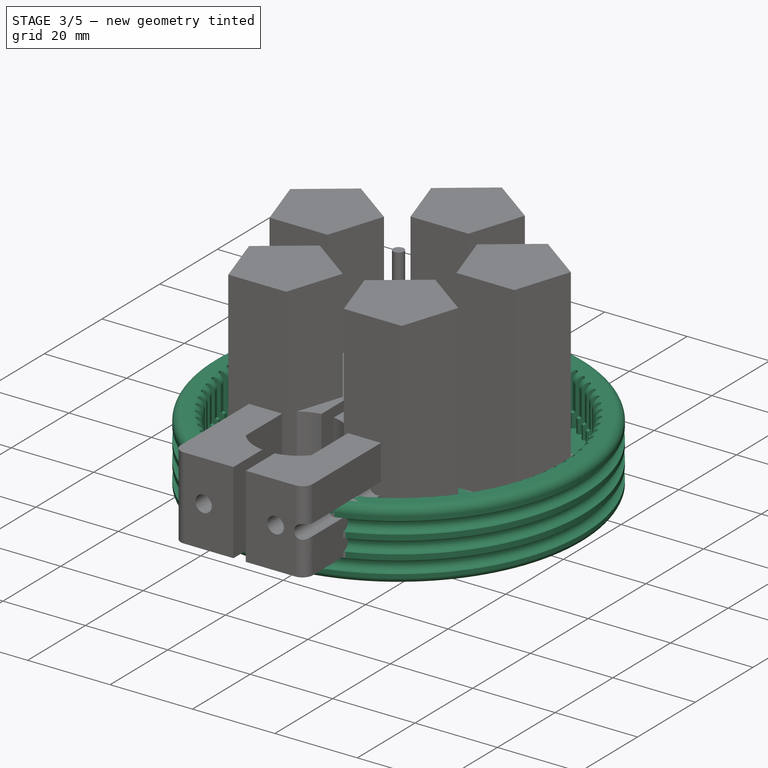
[diagram: stage 3 of 5 — iso view after this stage's code; geometry added in this stage tinted green]
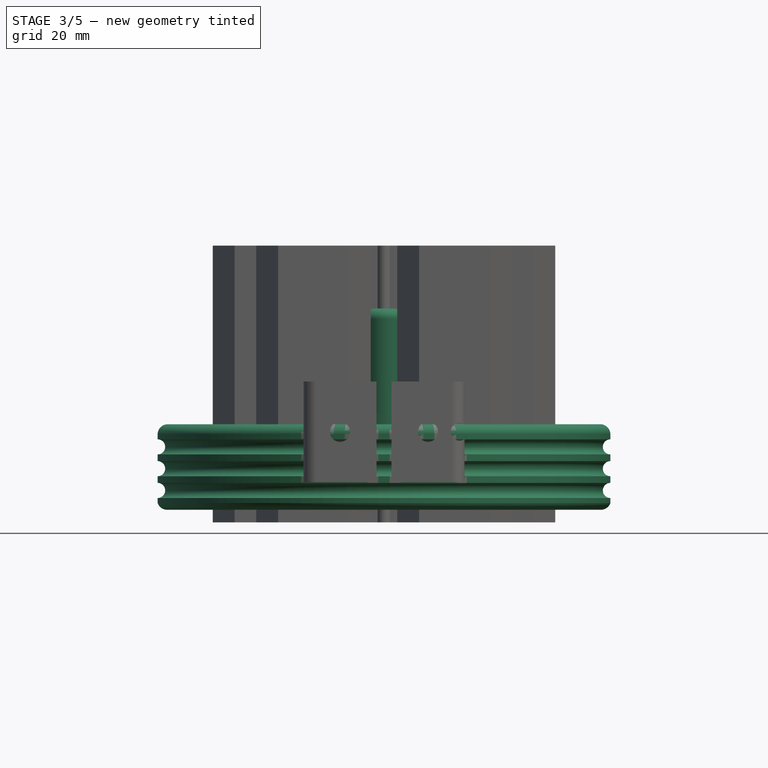
[diagram: stage 3 of 5 — front view after this stage's code; geometry added in this stage tinted green]
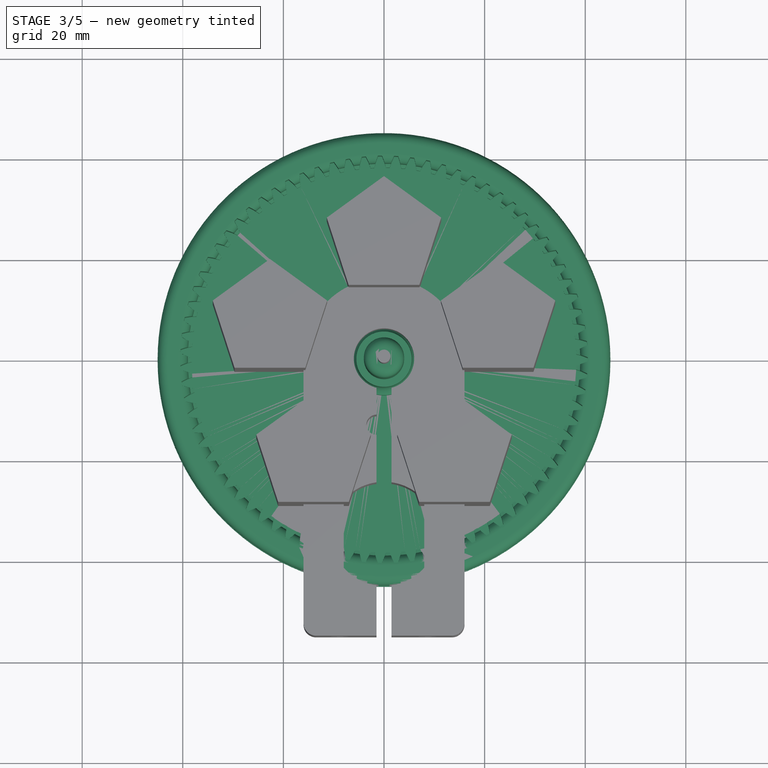
[diagram: stage 3 of 5 — top view after this stage's code; geometry added in this stage tinted green]
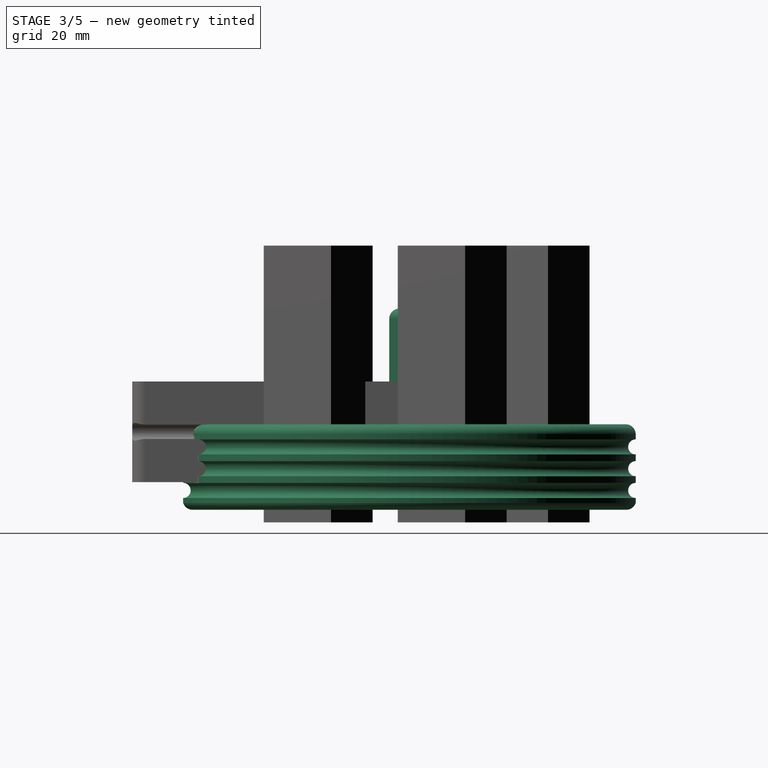
[diagram: stage 3 of 5 — right view after this stage's code; geometry added in this stage tinted green]
FEATURE [PartDesign::Body] Body001  label="Trasmissione Lato Ruota"
  Origin = -> Origin002
FEATURE [Sketcher::SketchObject] Sketch001  label="CerchioRuota90"
  FullyConstrained = false
  MapMode = 5
  Placement = pos=(0,0,0) rot=(1,0,0;1.5708rad)
  sketch-geometry (29):
    g0: LineSegment StartX=0 StartY=35.5 StartZ=0 EndX=2 EndY=35.5 EndZ=0
    g1: LineSegment StartX=8.5 StartY=4.5 StartZ=0 EndX=39 EndY=4.5 EndZ=0
    g2: LineSegment StartX=39 StartY=4.5 StartZ=0 EndX=39 EndY=10.5 EndZ=0
    g3: LineSegment StartX=41 StartY=12.5 StartZ=0 EndX=43 EndY=12.5 EndZ=0
    g4: LineSegment StartX=45 StartY=10.5 StartZ=0 EndX=45 EndY=9.5 EndZ=0
    g5: LineSegment StartX=43.1122 StartY=-4.5 StartZ=0 EndX=0 EndY=-4.5 EndZ=0
    g6: LineSegment StartX=0 StartY=-4.5 StartZ=0 EndX=0 EndY=35.5 EndZ=0
    g7: LineSegment StartX=5.5 StartY=4.5 StartZ=0 EndX=5.5 EndY=0 EndZ=0
    g8: LineSegment StartX=5.5 StartY=0 StartZ=0 EndX=5.5 EndY=-4.5 EndZ=0
    g9: ArcOfCircle CenterX=8.5 CenterY=7.5 CenterZ=0 NormalX=0 NormalY=0 NormalZ=1 AngleXU=0 Radius=3 StartAngle=3.14159 EndAngle=4.71239
    g10: LineSegment StartX=5.5 StartY=7.5 StartZ=0 EndX=5.5 EndY=4.5 EndZ=0
    g11: LineSegment StartX=5.5 StartY=4.5 StartZ=0 EndX=8.5 EndY=4.5 EndZ=0
    g12: ArcOfCircle CenterX=41 CenterY=10.5 CenterZ=0 NormalX=0 NormalY=0 NormalZ=1 AngleXU=0 Radius=2 StartAngle=1.5708 EndAngle=3.14159
    g13: ArcOfCircle CenterX=43 CenterY=10.5 CenterZ=0 NormalX=0 NormalY=0 NormalZ=1 AngleXU=0 Radius=2 StartAngle=0 EndAngle=1.5708
    g14: ArcOfCircle CenterX=43.1122 CenterY=-2.5 CenterZ=0 NormalX=0 NormalY=0 NormalZ=1 AngleXU=0 Radius=2 StartAngle=4.71239 EndAngle=5.94666
    g15: ArcOfCircle CenterX=45 CenterY=8 CenterZ=0 NormalX=0 NormalY=0 NormalZ=1 AngleXU=0 Radius=1.5 StartAngle=1.5708 EndAngle=4.71239
    g16: ArcOfCircle CenterX=45 CenterY=3.6698 CenterZ=0 NormalX=0 NormalY=0 NormalZ=1 AngleXU=0 Radius=1.5 StartAngle=1.5708 EndAngle=4.71239
    g17: LineSegment StartX=45 StartY=6.5 StartZ=0 EndX=45 EndY=5.1698 EndZ=0
    g18: LineSegment StartX=45 StartY=2.1698 StartZ=0 EndX=45 EndY=0.839591 EndZ=0
    g19: ArcOfCircle CenterX=45 CenterY=-0.660409 CenterZ=0 NormalX=0 NormalY=0 NormalZ=1 AngleXU=0 Radius=1.5 StartAngle=1.5708 EndAngle=4.71239
    g20: LineSegment StartX=45 StartY=-2.16041 StartZ=0 EndX=45 EndY=-3.16041 EndZ=0
    g21: ArcOfCircle CenterX=23.75 CenterY=82.1426 CenterZ=0 NormalX=0 NormalY=0 NormalZ=1 AngleXU=0 Radius=79.126 StartAngle=4.51844 EndAngle=4.90633
    g22: ArcOfCircle CenterX=2 CenterY=33.5 CenterZ=0 NormalX=0 NormalY=0 NormalZ=1 AngleXU=0 Radius=2 StartAngle=5e-16 EndAngle=1.5708
    g23: LineSegment StartX=45 StartY=9.5 StartZ=0 EndX=45 EndY=6.5 EndZ=0
    g24: LineSegment StartX=45 StartY=5.1698 StartZ=0 EndX=45 EndY=2.1698 EndZ=0
    g25: LineSegment StartX=45 StartY=0.839591 StartZ=0 EndX=45 EndY=-2.16041 EndZ=0
    g26: LineSegment StartX=4 StartY=33.5 StartZ=0 EndX=4 EndY=14.5 EndZ=0
    g27: LineSegment StartX=4 StartY=14.5 StartZ=0 EndX=5.5 EndY=14.5 EndZ=0
    g28: LineSegment StartX=5.5 StartY=14.5 StartZ=0 EndX=5.5 EndY=7.5 EndZ=0
  constraints (82):
    c: PointOnObject(g0,g-2)
    c: Horizontal(g1)
    c: Coincident(g1,g2)
    c: Vertical(g2)
    c: Horizontal(g3)
    c: Vertical(g4)
    c: PointOnObject(g5,g-2)
    c: Horizontal(g5)
    c: Coincident(g5,g6)
    c: Coincident(g6,g0)
    c: DistanceY(g5,g0) = 40
    c: Horizontal(g0)
    c: PointOnObject(g7,g-1)
    c: Coincident(g8,g7)
    c: Vertical(g8)
    c: Vertical(g7)
    c: PointOnObject(g8,g5)
    c: Equal(g7,g8)
    c: Tangent(g28,g9) = -1.5708
    c: Tangent(g1,g9) = -1.5708
    c: Coincident(g10,g28)
    c: Coincident(g10,g7)
    c: Vertical(g10)
    c: Coincident(g11,g7)
    c: Coincident(g11,g1)
    c: Equal(g11,g10)
    c: DistanceX(g11,g11) = 3
    c: Tangent(g2,g12) = 1.5708
    c: Tangent(g3,g12) = 1.5708
    c: Radius(g12) = 2
    c: Tangent(g3,g13) = 1.5708
    c: Tangent(g4,g13) = 1.5708
    c: DistanceX(g2,g4) = 6
    c: Equal(g12,g13)
    c: Tangent(g5,g14) = 1.5708
    c: Coincident(g20,g14) = 1.5708
    c: Equal(g13,g14)
    c: PointOnObject(g15,g4)
    c: PointOnObject(g16,g4)
    c: PointOnObject(g16,g4)
    c: PointOnObject(g16,g4)
    c: Coincident(g4,g15)
    c: Coincident(g17,g15)
    c: PointOnObject(g17,g16)
    c: PointOnObject(g18,g16)
    c: Equal(g15,g16)
    c: Radius(g15) = 1.5
    c: DistanceY(g4,g3) = 3
    c: PointOnObject(g19,g18)
    c: Coincident(g18,g19)
    c: Coincident(g20,g19)
    c: Equal(g20,g4)
    c: Equal(g17,g18)
    c: Equal(g16,g19)
    c: DistanceY(g1,g2) = 6
    c: Coincident(g21,g1)
    c: Coincident(g21,g1)
    c: Tangent(g0,g22) = 1.5708
    c: Tangent(g26,g22) = 1.5708
    c: DistanceX(g0,g26) = 4
    c: Equal(g22,g12)
    c: DistanceY(g5,g7) = 9
    c: Vertical(g20)
    c: Coincident(g23,g4)
    c: Coincident(g23,g15)
    c: Vertical(g23)
    c: Coincident(g24,g16)
    c: Coincident(g24,g18)
    c: Vertical(g24)
    c: Coincident(g25,g18)
    c: Coincident(g25,g19)
    c: Vertical(g25)
    c: Vertical(g18)
    c: Vertical(g17)
    c: DistanceX(g5,g14) = 45
    c: Coincident(g26,g27)
    c: Vertical(g26)
    c: Coincident(g27,g28)
    c: Vertical(g28)
    c: DistanceX(g0,g27) = 5.5
    c: Horizontal(g27)
    c: DistanceY(g9,g27) = 10
FEATURE [PartDesign::Revolution] Revolution  label="CerchioRuota90-001"
  Angle = 360
  Axis = (0,2e-16,1)
  Base = (0,0,0)
  Placement = pos=(0,0,0) rot=(1,0,0;1.5708rad)
  Profile = -> Sketch001
  ReferenceAxis = -> Sketch001 [V_Axis]
  Reversed = true
FEATURE [PartDesign::Body] Body002  label="IngranaggioDaSottrarreAlCercione"
  Origin = -> Origin004
FEATURE [PartDesign::FeaturePython] involutegear001  label="IngranaggioDaSottrarreAlCercione001"  # WARN: FeaturePython — macro-defined, semantics opaque (R4)
  AttacherType = Attacher::AttachEngine3D
  backlash = 0
  beta = 0
  clearance = 0.25
  da = 81
  df = 76.5
  double_helix = false
  dw = 79
  head = 0
  height = 13
  module = 1
  numpoints = 6
  pressure_angle = 20
  properties_from_tool = false
  reversed_backlash = false
  shift = 0
  simple = false
  teeth = 79
  transverse_pitch = 3.14159
  undercut = false
  version = 0.0.3
FEATURE [Sketcher::SketchObject] Sketch002  label="Buco per l'asse"
  FullyConstrained = true
  MapMode = 5
  Placement = pos=(0,0,13) rot=(0,0,1;0rad)
  Support = -> [involutegear001]
  sketch-geometry (1):
    g0: Circle CenterX=0 CenterY=0 CenterZ=0 NormalX=0 NormalY=0 NormalZ=1 AngleXU=0 Radius=7
  constraints (2):
    c: Coincident(g0,g-1)
    c: Radius(g0) = 7
FEATURE [PartDesign::Pocket] Pocket001  label="IngranaggioDaSottrarreAlCercione002"
  BaseFeature = -> involutegear001
  Direction = (0,0,-1)
  Length = 15
  Length2 = 5
  Profile = -> Sketch002
  ReferenceAxis = -> Sketch002 [N_Axis]
  Type = 0
FEATURE [PartDesign::FeatureBase] Clone
  BaseFeature = -> Revolution
  Placement = pos=(0,0,-1) rot=(1,0,0;1.5708rad)
FEATURE [Part::Cut] Cut  label="Cerchione"
  Base = -> Clone
  Tool = -> Pocket001
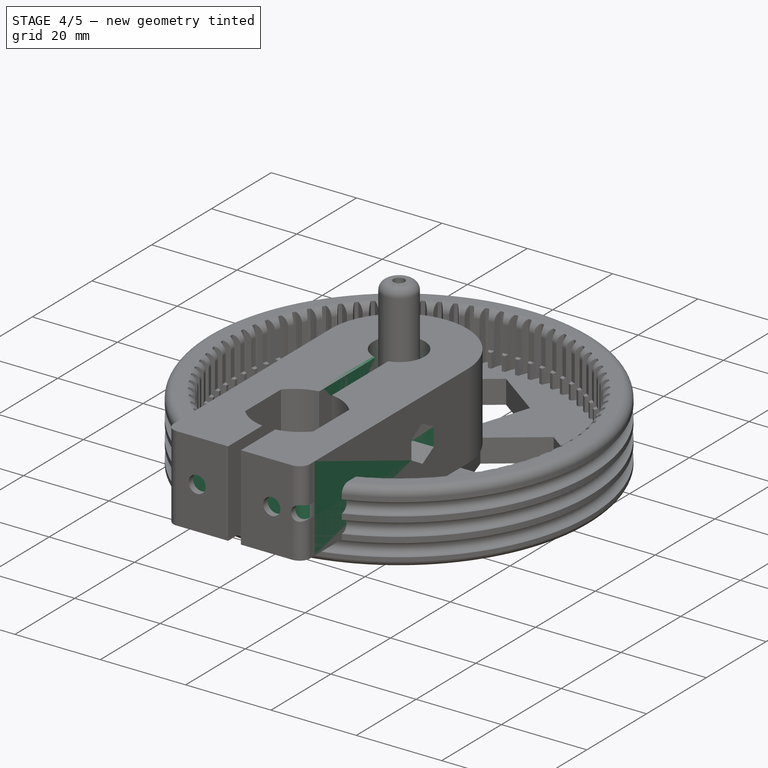
[diagram: stage 4 of 5 — iso view after this stage's code; geometry added in this stage tinted green]
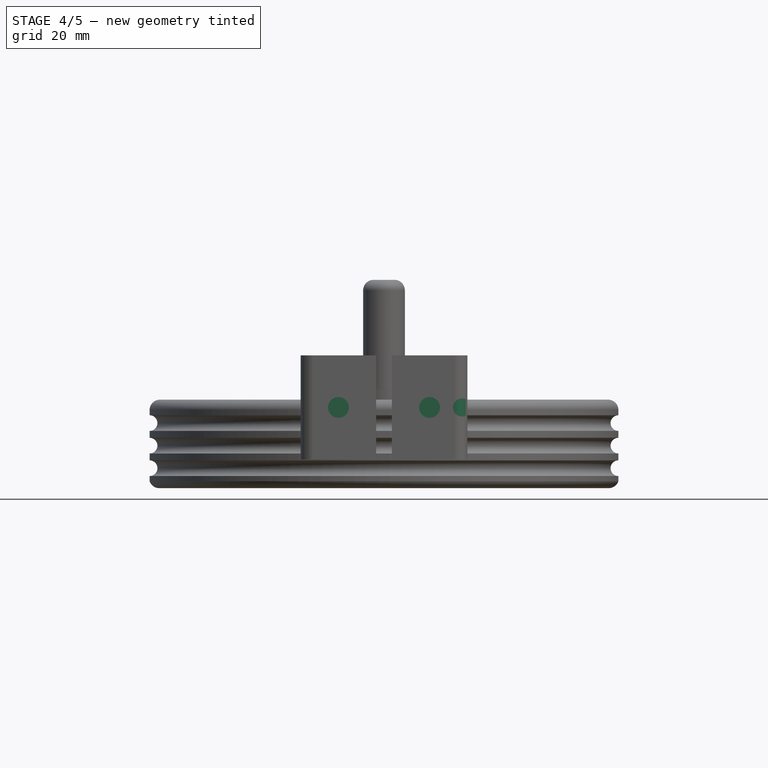
[diagram: stage 4 of 5 — front view after this stage's code; geometry added in this stage tinted green]
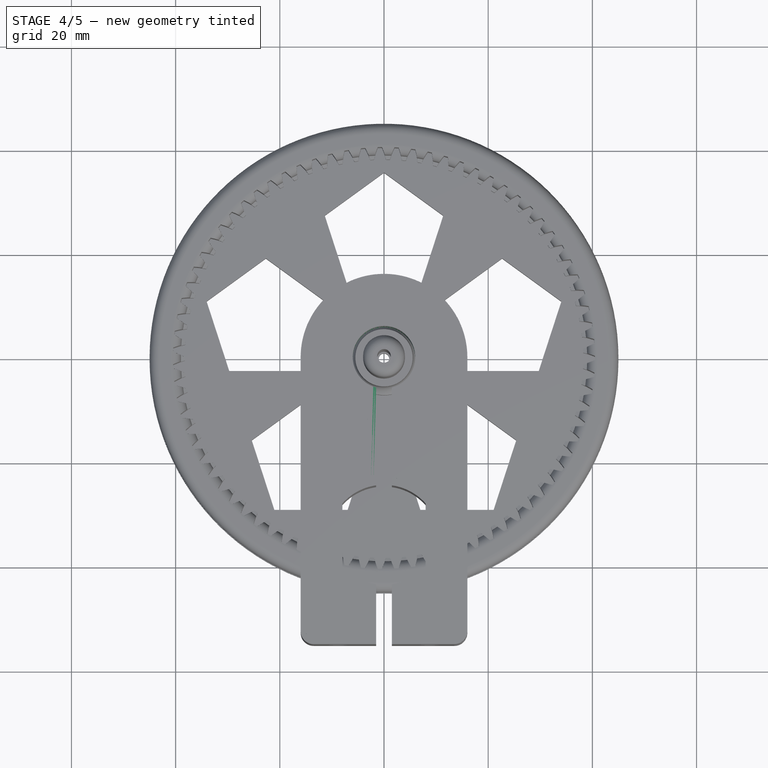
[diagram: stage 4 of 5 — top view after this stage's code; geometry added in this stage tinted green]
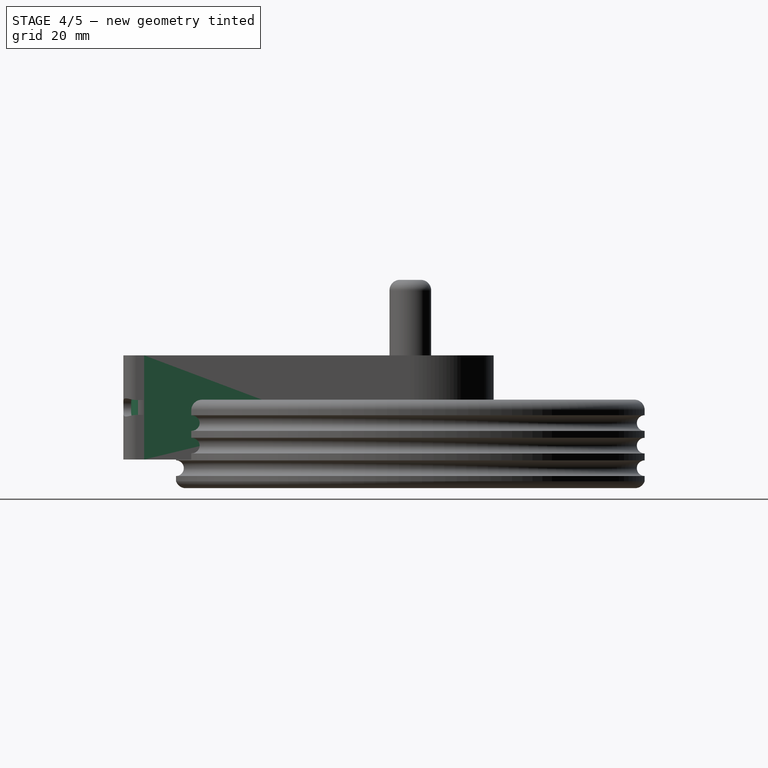
[diagram: stage 4 of 5 — right view after this stage's code; geometry added in this stage tinted green]
FEATURE [Sketcher::SketchObject] Sketch003  label="StaffaMotore001"
  FullyConstrained = true
  MapMode = 5
  Support = -> [XY_Plane007]
  sketch-geometry (34):
    g0: LineSegment StartX=-8 StartY=-26.6 StartZ=0 EndX=-8 EndY=-40.1 EndZ=0
    g1: LineSegment StartX=8 StartY=-40.1 StartZ=0 EndX=8 EndY=-26.6 EndZ=0
    g2: LineSegment StartX=-8 StartY=-26.6 StartZ=0 EndX=0 EndY=-26.6 EndZ=0
    g3: LineSegment StartX=0 StartY=-26.6 StartZ=0 EndX=8 EndY=-26.6 EndZ=0
    g4: LineSegment StartX=-8 StartY=-40.1 StartZ=0 EndX=0 EndY=-40.1 EndZ=0
    g5: LineSegment StartX=0 StartY=-40.1 StartZ=0 EndX=8 EndY=-40.1 EndZ=0
    g6: LineSegment StartX=-8 StartY=-26.6 StartZ=0 EndX=-8 EndY=-23 EndZ=0
    g7: LineSegment StartX=-8 StartY=-23 StartZ=0 EndX=8 EndY=-23 EndZ=0
    g8: LineSegment StartX=8 StartY=-23 StartZ=0 EndX=8 EndY=-26.6 EndZ=0
    g9: LineSegment StartX=-8 StartY=-40.1 StartZ=0 EndX=-8 EndY=-43.7 EndZ=0
    g10: LineSegment StartX=-8 StartY=-43.7 StartZ=0 EndX=8 EndY=-43.7 EndZ=0
    g11: LineSegment StartX=8 StartY=-43.7 StartZ=0 EndX=8 EndY=-40.1 EndZ=0
    g12: LineSegment StartX=0 StartY=-26.6 StartZ=0 EndX=0 EndY=-40.1 EndZ=0
    g13: ArcOfCircle CenterX=4e-16 CenterY=-33.6889 CenterZ=0 NormalX=0 NormalY=0 NormalZ=1 AngleXU=0 Radius=10.6889 StartAngle=0.725088 EndAngle=2.4165
    g14: ArcOfCircle CenterX=-3e-16 CenterY=-33.0111 CenterZ=0 NormalX=0 NormalY=0 NormalZ=1 AngleXU=0 Radius=10.6889 StartAngle=3.86668 EndAngle=5.5581
    g15: ArcOfCircle CenterX=0 CenterY=0 CenterZ=0 NormalX=0 NormalY=0 NormalZ=1 AngleXU=0 Radius=16 StartAngle=0 EndAngle=3.14159
    g16: LineSegment StartX=-16 StartY=2e-15 StartZ=0 EndX=-16 EndY=-51.0942 EndZ=0
    g17: LineSegment StartX=16 StartY=-51.0942 StartZ=0 EndX=16 EndY=0 EndZ=0
    g18: ArcOfCircle CenterX=-13.5 CenterY=-51.0942 CenterZ=0 NormalX=0 NormalY=0 NormalZ=1 AngleXU=0 Radius=2.5 StartAngle=3.14159 EndAngle=4.71239
    g19: ArcOfCircle CenterX=13.5 CenterY=-51.0942 CenterZ=0 NormalX=0 NormalY=0 NormalZ=1 AngleXU=0 Radius=2.5 StartAngle=4.71239 EndAngle=6.28319
    g20: LineSegment StartX=-1.5 StartY=-53.5942 StartZ=0 EndX=-1.5 EndY=-43.5942 EndZ=0
    g21: LineSegment StartX=1.5 StartY=-53.5942 StartZ=0 EndX=1.5 EndY=-43.5942 EndZ=0
    g22: LineSegment StartX=-13.5 StartY=-53.5942 StartZ=0 EndX=-1.5 EndY=-53.5942 EndZ=0
    g23: LineSegment StartX=-1.5 StartY=-53.5942 StartZ=0 EndX=1.5 EndY=-53.5942 EndZ=0
    g24: LineSegment StartX=1.5 StartY=-53.5942 StartZ=0 EndX=13.5 EndY=-53.5942 EndZ=0
    g25: ArcOfCircle CenterX=-3e-16 CenterY=-33.0111 CenterZ=0 NormalX=0 NormalY=0 NormalZ=1 AngleXU=0 Radius=10.6889 StartAngle=3.86668 EndAngle=4.57159
    g26: ArcOfCircle CenterX=-3e-16 CenterY=-33.0111 CenterZ=0 NormalX=0 NormalY=0 NormalZ=1 AngleXU=0 Radius=10.6889 StartAngle=4.85319 EndAngle=5.5581
    g27: ArcOfCircle CenterX=0 CenterY=0 CenterZ=0 NormalX=0 NormalY=0 NormalZ=1 AngleXU=0 Radius=6 StartAngle=4.96507 EndAngle=10.7429
    g28: LineSegment StartX=-1.5 StartY=-5.80948 StartZ=0 EndX=-1.5 EndY=-23.1058 EndZ=0
    g29: LineSegment StartX=1.5 StartY=-5.80948 StartZ=0 EndX=1.5 EndY=-23.1058 EndZ=0
    g30: LineSegment StartX=-1.5 StartY=-23.1058 StartZ=0 EndX=-1.5 EndY=-43.5942 EndZ=0
    g31: LineSegment StartX=1.5 StartY=-43.5942 StartZ=0 EndX=1.5 EndY=-23.1058 EndZ=0
    g32: ArcOfCircle CenterX=4e-16 CenterY=-33.6889 CenterZ=0 NormalX=0 NormalY=0 NormalZ=1 AngleXU=0 Radius=10.6889 StartAngle=1.71159 EndAngle=2.4165
    g33: ArcOfCircle CenterX=4e-16 CenterY=-33.6889 CenterZ=0 NormalX=0 NormalY=0 NormalZ=1 AngleXU=0 Radius=10.6889 StartAngle=0.725088 EndAngle=1.43
  constraints (91):
    c: Vertical(g0)
    c: DistanceY(g0,g0) = 13.5
    c: Coincident(g2,g0)
    c: Coincident(g3,g1)
    c: Coincident(g4,g0)
    c: Coincident(g5,g1)
    c: Coincident(g2,g3)
    c: Horizontal(g2)
    c: Horizontal(g3)
    c: Coincident(g4,g5)
    c: Horizontal(g4)
    c: Horizontal(g5)
    c: Coincident(g0,g6)
    c: Coincident(g6,g7)
    c: Horizontal(g7)
    c: Coincident(g7,g8)
    c: Coincident(g8,g1)
    c: Vertical(g8)
    c: Coincident(g0,g9)
    c: Vertical(g9)
    c: Coincident(g9,g10)
    c: Horizontal(g10)
    c: Coincident(g10,g11)
    c: Coincident(g11,g1)
    c: Vertical(g6)
    c: DistanceY(g0,g6) = 3.6
    c: DistanceX(g6,g7) = 16
    c: Vertical(g1)
    c: Equal(g9,g6)
    c: Vertical(g11)
    c: Coincident(g2,g12)
    c: Coincident(g12,g4)
    c: Vertical(g12)
    c: Equal(g2,g3)
    c: Coincident(g13,g0)
    c: Coincident(g13,g1)
    c: Tangent(g13,g7)
    c: Coincident(g14,g0)
    c: Coincident(g14,g1)
    c: Tangent(g14,g10)
    c: PointOnObject(g2,g-2)
    c: Coincident(g15,g-1)
    c: PointOnObject(g15,g-1)
    c: PointOnObject(g15,g-1)
    c: Radius(g15) = 16
    c: Tangent(g15,g16) = -1.5708
    c: Coincident(g17,g15)
    c: Vertical(g17)
    c: Tangent(g16,g18) = -1.5708
    c: Tangent(g22,g18) = -1.5708
    c: Tangent(g17,g19) = -1.5708
    c: Tangent(g24,g19) = -1.5708
    c: Equal(g19,g18)
    c: Radius(g19) = 2.5
    c: Vertical(g20)
    c: Vertical(g21)
    c: DistanceX(g20,g21) = 3
    c: Coincident(g22,g23)
    c: Horizontal(g22)
    c: Coincident(g23,g24)
    c: Horizontal(g23)
    c: Horizontal(g24)
    c: Coincident(g23,g21)
    c: Coincident(g22,g20)
    c: Equal(g22,g24)
    c: Coincident(g25,g14)
    c: Coincident(g25,g0)
    c: Coincident(g25,g20)
    c: Coincident(g26,g25)
    c: Coincident(g26,g21)
    c: Coincident(g26,g1)
    c: DistanceY(g18,g20) = 10
    c: DistanceY(g7,g-1) = 23
    c: Coincident(g27,g15)
    c: Coincident(g28,g27)
    c: Coincident(g29,g27)
    c: Coincident(g30,g28)
    c: Coincident(g30,g20)
    c: Coincident(g31,g21)
    c: Coincident(g31,g29)
    c: Vertical(g31)
    c: Vertical(g29)
    c: Vertical(g28)
    c: Vertical(g30)
    c: Coincident(g32,g13)
    c: Coincident(g32,g0)
    c: Coincident(g32,g28)
    c: Coincident(g33,g32)
    c: Coincident(g33,g1)
    c: Coincident(g33,g29)
    c: Radius(g27) = 6
FEATURE [PartDesign::Pad] Pad  label="StaffaMotore002"
  Direction = (0,0,1)
  Length = 20
  Length2 = 10
  Profile = -> Sketch003
  ReferenceAxis = -> Sketch003 [N_Axis]
  Type = 0
FEATURE [Sketcher::SketchObject] Sketch004  label="ForoViteSerraggio"
  FullyConstrained = true
  MapMode = 5
  Placement = pos=(-16,0,0) rot=(0.57735,-0.57735,-0.57735;2.0944rad)
  Support = -> [Pad]
  sketch-geometry (1):
    g0: Circle CenterX=15 CenterY=10 CenterZ=0 NormalX=0 NormalY=0 NormalZ=1 AngleXU=0 Radius=1.75
  constraints (3):
    c: DistanceY(g-1,g0) = 10
    c: DistanceX(g-1,g0) = 15
    c: Radius(g0) = 1.75
FEATURE [PartDesign::Pocket] Pocket002  label="StaffaMotore003"
  BaseFeature = -> Pad
  Direction = (1,0,0)
  Length = 50
  Length2 = 5
  Profile = -> Sketch004
  ReferenceAxis = -> Sketch004 [N_Axis]
  Type = 0
FEATURE [Sketcher::SketchObject] Sketch005  label="SedeDadoSerraggio"
  AttachmentOffset = pos=(0,0,0) rot=(0,1,0;3.14159rad)
  FullyConstrained = true
  MapMode = 5
  Placement = pos=(16,0,0) rot=(-0.57735,0.57735,0.57735;4.18879rad)
  Support = -> [Pocket002]
  sketch-geometry (7):
    g0: LineSegment StartX=18.75 StartY=7.83494 StartZ=0 EndX=18.75 EndY=12.1651 EndZ=0
    g1: LineSegment StartX=18.75 StartY=12.1651 StartZ=0 EndX=15 EndY=14.3301 EndZ=0
    g2: LineSegment StartX=15 StartY=14.3301 StartZ=0 EndX=11.25 EndY=12.1651 EndZ=0
    g3: LineSegment StartX=11.25 StartY=12.1651 StartZ=0 EndX=11.25 EndY=7.83494 EndZ=0
    g4: LineSegment StartX=11.25 StartY=7.83494 StartZ=0 EndX=15 EndY=5.66987 EndZ=0
    g5: LineSegment StartX=15 StartY=5.66987 StartZ=0 EndX=18.75 EndY=7.83494 EndZ=0
    g6: Circle CenterX=15 CenterY=10 CenterZ=0 NormalX=0 NormalY=0 NormalZ=1 AngleXU=0 Radius=4.33013
  constraints (17):
    c: Coincident(g0,g1)
    c: Coincident(g1,g2)
    c: Coincident(g2,g3)
    c: Coincident(g3,g4)
    c: Coincident(g4,g5)
    c: Coincident(g5,g0)
    c: Equal(g0, g1-g5) x5
    c: PointOnObject(g0,g6)
    c: PointOnObject(g1,g6)
    c: PointOnObject(g2,g6)
    c: PointOnObject(g3,g6)
    c: PointOnObject(g4,g6)
    c: PointOnObject(g5,g6)
    c: Vertical(g0)
    c: DistanceX(g2,g0) = 7.5
    c: DistanceY(g-1,g6) = 10
    c: DistanceX(g-1,g6) = 15
FEATURE [Sketcher::SketchObject] Sketch006  label="IncastroPerStaffaFissaggio"
  FullyConstrained = false
  MapMode = 5
  Placement = pos=(0,0,0) rot=(1,0,0;3.14159rad)
  sketch-geometry (38):
    g0: LineSegment StartX=-7 StartY=54.7266 StartZ=0 EndX=-7 EndY=50.7266 EndZ=0
    g1: LineSegment StartX=-7 StartY=50.7266 StartZ=0 EndX=-6.15 EndY=50.7266 EndZ=0
    g2: LineSegment StartX=-6.15 StartY=50.7266 StartZ=0 EndX=-6.15 EndY=46.7266 EndZ=0
    g3: LineSegment StartX=-6.15 StartY=46.7266 StartZ=0 EndX=-11.85 EndY=46.7266 EndZ=0
    g4: LineSegment StartX=-11.85 StartY=46.7266 StartZ=0 EndX=-11.85 EndY=50.7266 EndZ=0
    g5: LineSegment StartX=-11.85 StartY=50.7266 StartZ=0 EndX=-11 EndY=50.7266 EndZ=0
    g6: LineSegment StartX=-11 StartY=50.7266 StartZ=0 EndX=-11 EndY=54.7266 EndZ=0
    g7: LineSegment StartX=-11 StartY=50.7266 StartZ=0 EndX=-7 EndY=50.7266 EndZ=0
    g8: LineSegment StartX=-11 StartY=54.7266 StartZ=0 EndX=-9 EndY=54.7266 EndZ=0
    g9: LineSegment StartX=-9 StartY=54.7266 StartZ=0 EndX=-7 EndY=54.7266 EndZ=0
    g10: LineSegment StartX=7 StartY=54.7266 StartZ=0 EndX=9 EndY=54.7266 EndZ=0
    g11: LineSegment StartX=9 StartY=54.7266 StartZ=0 EndX=11 EndY=54.7266 EndZ=0
    g12: LineSegment StartX=11 StartY=54.7266 StartZ=0 EndX=11 EndY=50.7266 EndZ=0
    g13: LineSegment StartX=11 StartY=50.7266 StartZ=0 EndX=11.85 EndY=50.7266 EndZ=0
    g14: LineSegment StartX=11.85 StartY=50.7266 StartZ=0 EndX=11.85 EndY=46.7266 EndZ=0
    g15: LineSegment StartX=11.85 StartY=46.7266 StartZ=0 EndX=6.15 EndY=46.7266 EndZ=0
    g16: LineSegment StartX=6.15 StartY=46.7266 StartZ=0 EndX=6.15 EndY=50.7266 EndZ=0
    g17: LineSegment StartX=6.15 StartY=50.7266 StartZ=0 EndX=7 EndY=50.7266 EndZ=0
    g18: LineSegment StartX=7 StartY=50.7266 StartZ=0 EndX=7 EndY=54.7266 EndZ=0
    g19: LineSegment StartX=7 StartY=50.7266 StartZ=0 EndX=11 EndY=50.7266 EndZ=0
    g20: LineSegment StartX=-6.15 StartY=46.7266 StartZ=0 EndX=6.15 EndY=46.7266 EndZ=0
    g21: LineSegment StartX=-6.15 StartY=50.7266 StartZ=0 EndX=6.15 EndY=50.7266 EndZ=0
    g22: LineSegment StartX=-7 StartY=54.7266 StartZ=0 EndX=7 EndY=54.7266 EndZ=0
    g23: LineSegment StartX=-11 StartY=46.7266 StartZ=0 EndX=-11 EndY=42.2803 EndZ=0
    g24: LineSegment StartX=-11 StartY=42.2803 StartZ=0 EndX=-9 EndY=42.2803 EndZ=0
    g25: LineSegment StartX=-9 StartY=42.2803 StartZ=0 EndX=-7 EndY=42.2803 EndZ=0
    g26: LineSegment StartX=-7 StartY=42.2803 StartZ=0 EndX=-7 EndY=46.7266 EndZ=0
    g27: LineSegment StartX=7 StartY=46.7266 StartZ=0 EndX=7 EndY=42.2803 EndZ=0
    g28: LineSegment StartX=7 StartY=42.2803 StartZ=0 EndX=9 EndY=42.2803 EndZ=0
    g29: LineSegment StartX=9 StartY=42.2803 StartZ=0 EndX=11 EndY=42.2803 EndZ=0
    g30: LineSegment StartX=11 StartY=42.2803 StartZ=0 EndX=11 EndY=46.7266 EndZ=0
    g31: LineSegment StartX=-11 StartY=50.7266 StartZ=0 EndX=-11 EndY=46.7266 EndZ=0
    g32: LineSegment StartX=-7 StartY=50.7266 StartZ=0 EndX=-7 EndY=46.7266 EndZ=0
    g33: LineSegment StartX=11 StartY=50.7266 StartZ=0 EndX=11 EndY=46.7266 EndZ=0
    g34: LineSegment StartX=7 StartY=50.7266 StartZ=0 EndX=7 EndY=46.7266 EndZ=0
    g35: LineSegment StartX=-9 StartY=54.7266 StartZ=0 EndX=-9 EndY=42.2803 EndZ=0
    g36: LineSegment StartX=9 StartY=54.7266 StartZ=0 EndX=9 EndY=42.2803 EndZ=0
    g37: LineSegment StartX=-7 StartY=42.2803 StartZ=0 EndX=7 EndY=42.2803 EndZ=0
  constraints (101):
    c: Coincident(g9,g0)
    c: Coincident(g0,g1)
    c: Horizontal(g1)
    c: Coincident(g1,g2)
    c: Vertical(g2)
    c: Coincident(g2,g3)
    c: Horizontal(g3)
    c: Coincident(g3,g4)
    c: Vertical(g4)
    c: Coincident(g4,g5)
    c: Horizontal(g5)
    c: Coincident(g5,g6)
    c: Coincident(g6,g8)
    c: Vertical(g6)
    c: Vertical(g0)
    c: DistanceY(g3,g4) = 4
    c: DistanceX(g3,g2) = 5.7
    c: DistanceX(g8,g9) = 4
    c: Equal(g5,g1)
    c: DistanceY(g5,g8) = 4
    c: Coincident(g7,g5)
    c: Coincident(g7,g0)
    c: Horizontal(g7)
    c: Coincident(g8,g9)
    c: Horizontal(g8)
    c: Horizontal(g9)
    c: Equal(g8,g9)
    c: Horizontal(g10)
    c: Coincident(g10,g11)
    c: Horizontal(g11)
    c: Coincident(g11,g12)
    c: Coincident(g12,g13)
    c: Horizontal(g13)
    c: Coincident(g13,g14)
    c: Coincident(g14,g15)
    c: Horizontal(g15)
    c: Coincident(g15,g16)
    c: Vertical(g16)
    c: Coincident(g16,g17)
    c: Horizontal(g17)
    c: Coincident(g17,g18)
    c: Coincident(g18,g10)
    c: Coincident(g19,g17)
    c: Coincident(g19,g12)
    c: Horizontal(g19)
    c: Coincident(g20,g2)
    c: Coincident(g20,g15)
    c: Coincident(g21,g1)
    c: Coincident(g21,g16)
    c: Horizontal(g20)
    c: Coincident(g22,g0)
    c: Coincident(g22,g10)
    c: Horizontal(g22)
    c: Equal(g11,g10)
    c: DistanceX(g10,g11) = 4
    c: Equal(g13,g17)
    c: Vertical(g14)
    c: DistanceX(g15,g14) = 5.7
    c: Vertical(g12)
    c: Vertical(g18)
    c: Symmetric(g1,g16,g-2)
    c: DistanceX(g8,g10) = 18
    c: PointOnObject(g23,g3)
    c: Vertical(g23)
    c: Coincident(g23,g24)
    c: Coincident(g24,g25)
    c: Horizontal(g25)
    c: Coincident(g25,g26)
    c: PointOnObject(g26,g3)
    c: Vertical(g26)
    c: PointOnObject(g27,g15)
    c: Vertical(g27)
    c: Coincident(g27,g28)
    c: Horizontal(g28)
    c: Coincident(g28,g29)
    c: Horizontal(g29)
    c: Coincident(g29,g30)
    c: PointOnObject(g30,g15)
    c: Vertical(g30)
    c: Coincident(g31,g5)
    c: Coincident(g31,g23)
    c: Coincident(g32,g1)
    c: Coincident(g32,g26)
    c: Coincident(g33,g13)
    c: Coincident(g33,g30)
    c: Coincident(g34,g17)
    c: Coincident(g34,g27)
    c: Vertical(g31)
    c: Vertical(g32)
    c: Vertical(g34)
    c: Vertical(g33)
    c: Coincident(g35,g8)
    c: Coincident(g35,g24)
    c: Vertical(g35)
    c: Coincident(g36,g10)
    c: Coincident(g36,g28)
    c: Vertical(g36)
    c: Coincident(g37,g25)
    c: Coincident(g37,g27)
    c: Horizontal(g37)
    c: Horizontal(g24)
FEATURE [PartDesign::Pocket] Pocket003  label="StaffaMotore004"
  BaseFeature = -> Pocket002
  Direction = (1,-1e-16,0)
  Length = 5
  Length2 = 5
  Profile = -> Sketch005
  ReferenceAxis = -> Sketch005 [N_Axis]
  Reversed = true
  Type = 0
FEATURE [PartDesign::Pocket] Pocket004  label="StaffaMotore005"
  BaseFeature = -> Pocket003
  Direction = (0,0,1)
  Length = 15
  Length2 = 5
  Profile = -> Sketch006
  ReferenceAxis = -> Sketch006 [N_Axis]
  Type = 0
FEATURE [Part::Cut] Cut001
  Base = -> Cut
  Tool = -> Extrude001
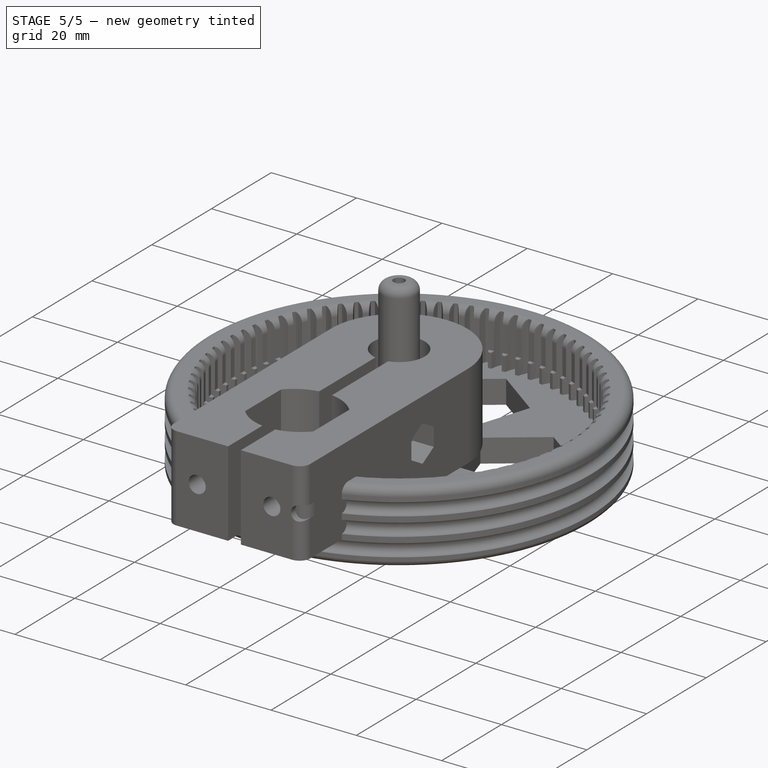
[diagram: stage 5 of 5 — iso view after this stage's code; geometry added in this stage tinted green]
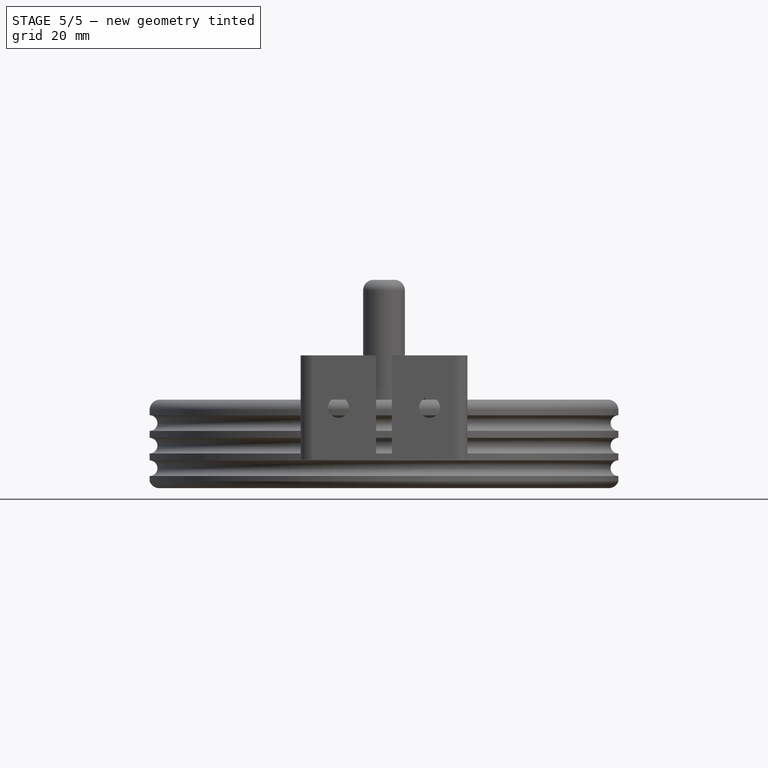
[diagram: stage 5 of 5 — front view after this stage's code; geometry added in this stage tinted green]
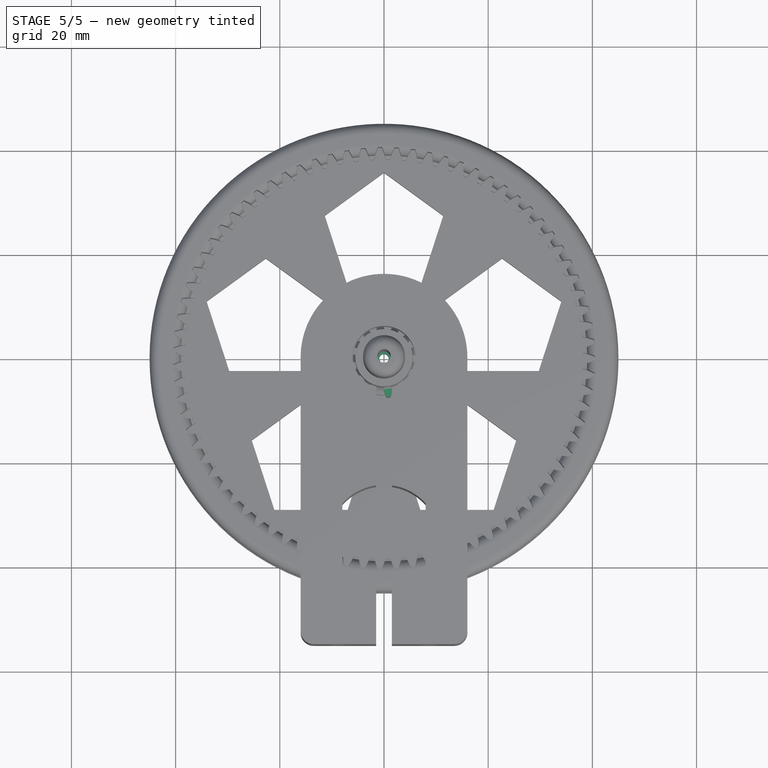
[diagram: stage 5 of 5 — top view after this stage's code; geometry added in this stage tinted green]
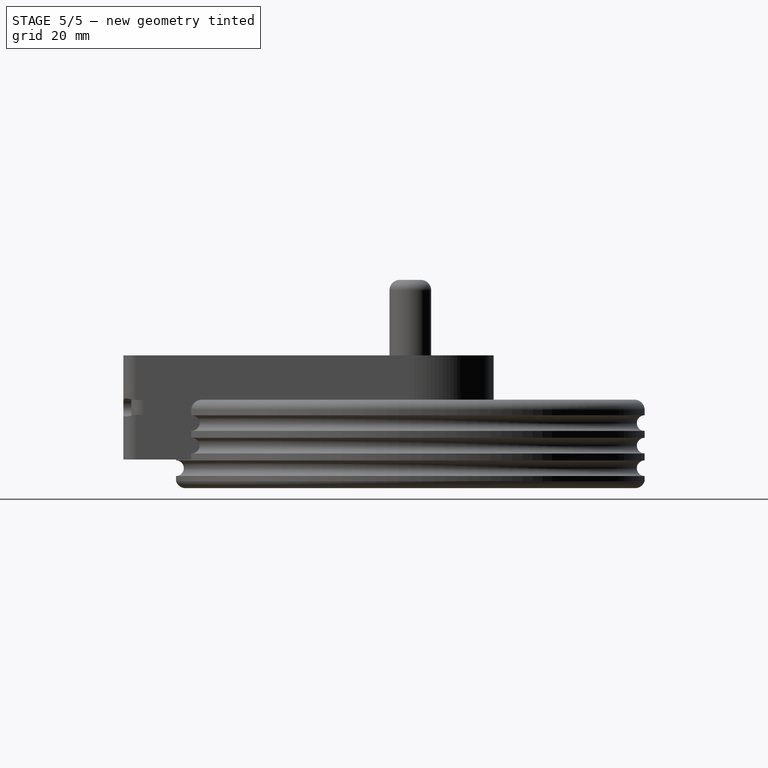
[diagram: stage 5 of 5 — right view after this stage's code; geometry added in this stage tinted green]
FEATURE [Part::FeaturePython] involutegear  label="PrimarioMotore13Denti"  # WARN: FeaturePython — macro-defined, semantics opaque (R4)
  AttacherType = Attacher::AttachEngine3D
  backlash = 0
  beta = 0
  clearance = 1
  da = 15
  df = 9
  double_helix = false
  dw = 13
  head = 0
  height = 6
  module = 1
  numpoints = 12
  pressure_angle = 20
  properties_from_tool = false
  reversed_backlash = false
  shift = 0
  simple = false
  teeth = 13
  transverse_pitch = 3.14159
  undercut = true
  version = 0.0.3
FEATURE [PartDesign::FeatureBase] BaseFeature  label="PrimarioMotore13"
  BaseFeature = -> involutegear
FEATURE [Sketcher::SketchObject] Sketch  label="ForoAsseMotore"
  FullyConstrained = true
  MapMode = 5
  Placement = pos=(0,0,6) rot=(0,0,1;0rad)
  Support = -> [BaseFeature]
  sketch-geometry (1):
    g0: Circle CenterX=0 CenterY=0 CenterZ=0 NormalX=0 NormalY=0 NormalZ=1 AngleXU=0 Radius=0.9
  constraints (2):
    c: Coincident(g0,g-1)
    c: Radius(g0) = 0.9
FEATURE [PartDesign::Pocket] Pocket  label="PrimarioMotore13-001"
  BaseFeature = -> BaseFeature
  Direction = (0,0,-1)
  Length = 10
  Length2 = 5
  Profile = -> Sketch
  ReferenceAxis = -> Sketch [N_Axis]
  Type = 0
FEATURE [Sketcher::SketchObject] Sketch007  label="ForiVitiFissaggio"
  FullyConstrained = true
  MapMode = 5
  Placement = pos=(0,-53.5942,0) rot=(1,0,0;1.5708rad)
  Support = -> [Pocket004]
  sketch-geometry (4):
    g0: Circle CenterX=-8.75 CenterY=10 CenterZ=0 NormalX=0 NormalY=0 NormalZ=1 AngleXU=0 Radius=2
    g1: Circle CenterX=8.75 CenterY=10 CenterZ=0 NormalX=0 NormalY=0 NormalZ=1 AngleXU=0 Radius=2
    g2: LineSegment StartX=-8.75 StartY=10 StartZ=0 EndX=0 EndY=10 EndZ=0
    g3: LineSegment StartX=0 StartY=10 StartZ=0 EndX=8.75 EndY=10 EndZ=0
  constraints (11):
    c: Coincident(g0,g2)
    c: Coincident(g1,g3)
    c: Equal(g1,g0)
    c: Radius(g0) = 2
    c: Coincident(g2,g3)
    c: Horizontal(g2)
    c: Horizontal(g3)
    c: PointOnObject(g2,g-2)
    c: Equal(g2,g3)
    c: DistanceX(g0,g1) = 17.5
    c: DistanceY(g-1,g1) = 10
FEATURE [PartDesign::Pocket] Pocket005  label="StaffaMotore006"
  BaseFeature = -> Pocket004
  Direction = (0,1,-2e-16)
  Length = 15
  Length2 = 5
  Profile = -> Sketch007
  ReferenceAxis = -> Sketch007 [N_Axis]
  Type = 0
FEATURE [Sketcher::SketchObject] Sketch008  label="SedeCuscinetti(2xruota)"
  FullyConstrained = true
  MapMode = 5
  Placement = pos=(0,0,0) rot=(1,0,0;3.14159rad)
  Support = -> [Pocket005]
  sketch-geometry (1):
    g0: Circle CenterX=0 CenterY=0 CenterZ=0 NormalX=0 NormalY=0 NormalZ=1 AngleXU=0 Radius=8.1
  constraints (2):
    c: Coincident(g0,g-1)
    c: Radius(g0) = 8.1
FEATURE [PartDesign::Pocket] Pocket006  label="StaffaMotore007"
  BaseFeature = -> Pocket005
  Direction = (0,0,1)
  Length = 10
  Length2 = 5
  Profile = -> Sketch008
  ReferenceAxis = -> Sketch008 [N_Axis]
  Type = 0
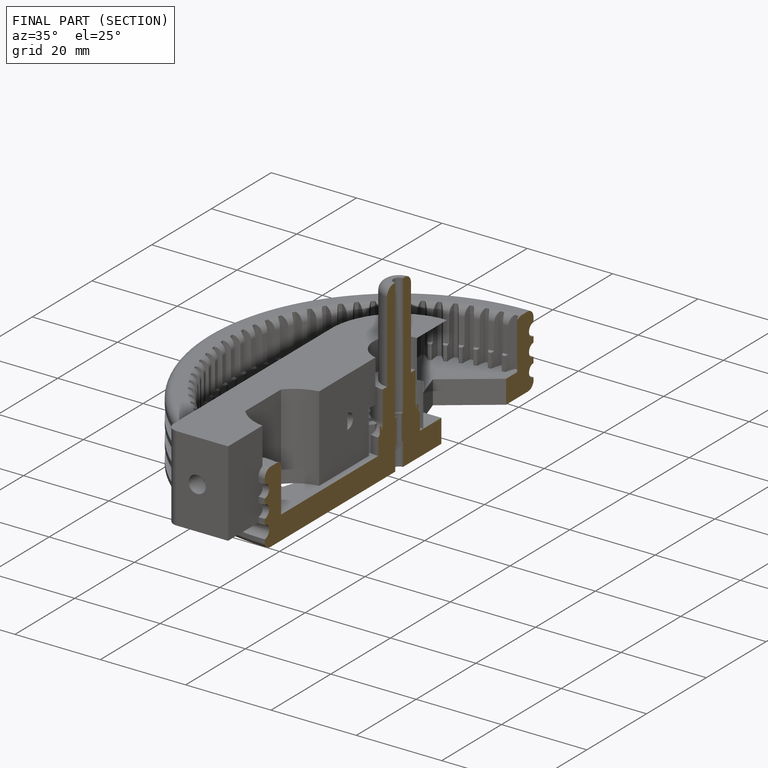
[diagram: finished part — half-section view (interior)]
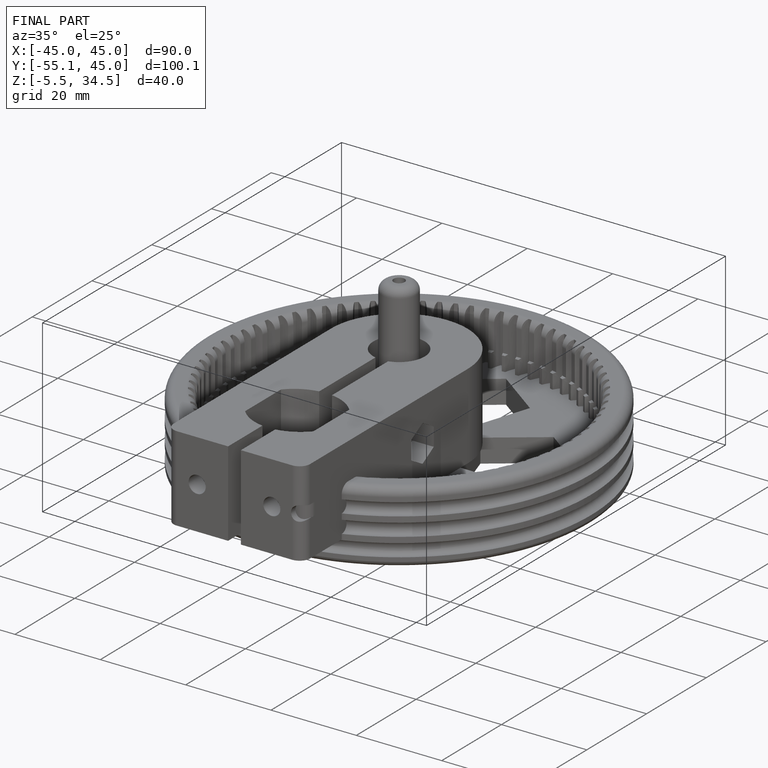
[diagram: finished part — iso view with bounding-box wireframe]
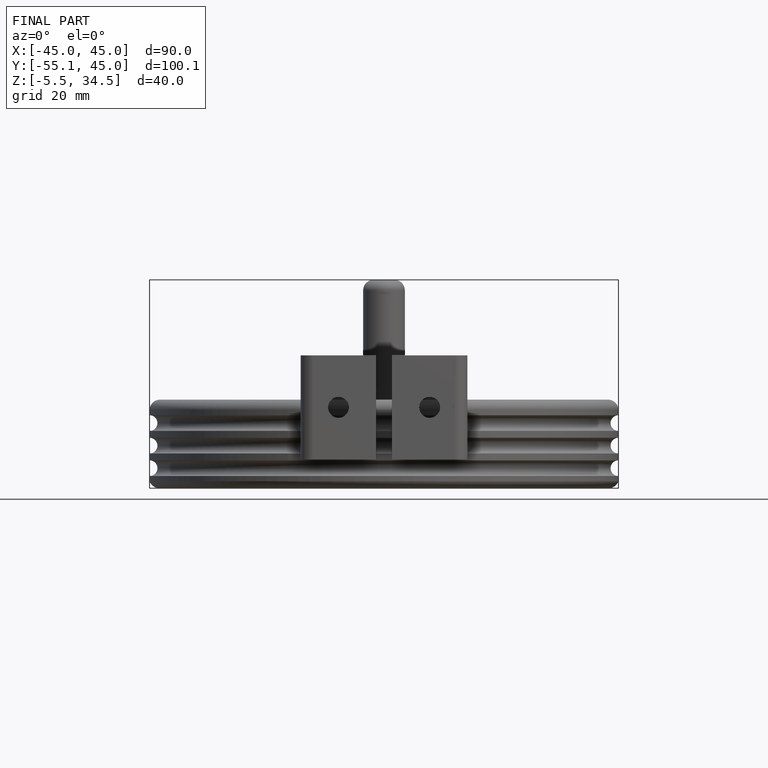
[diagram: finished part — front view with bounding-box wireframe]
